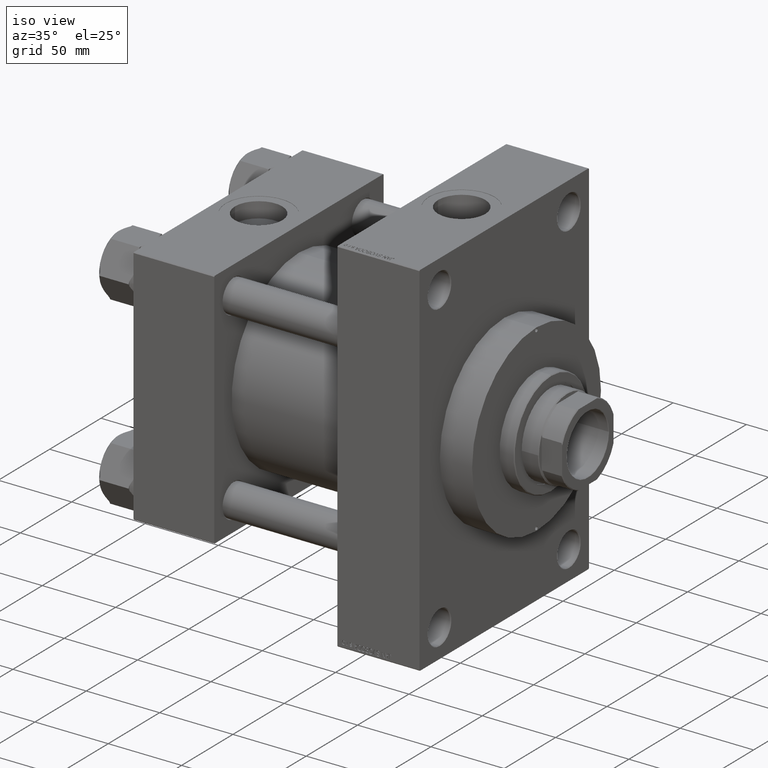
[diagram: clean part render]
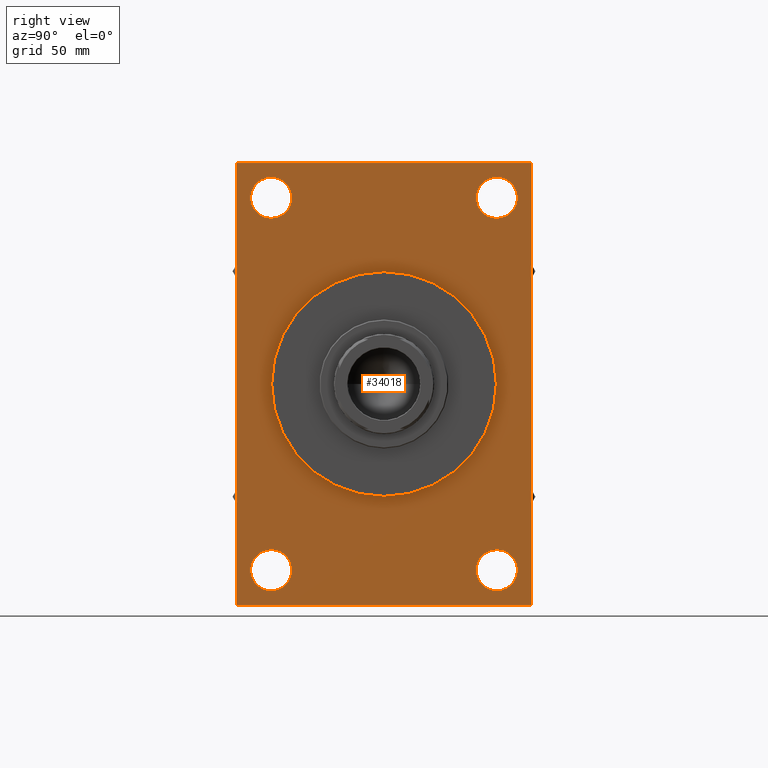
[diagram: tour spotlight — one face highlighted and labeled with its STEP entity id]
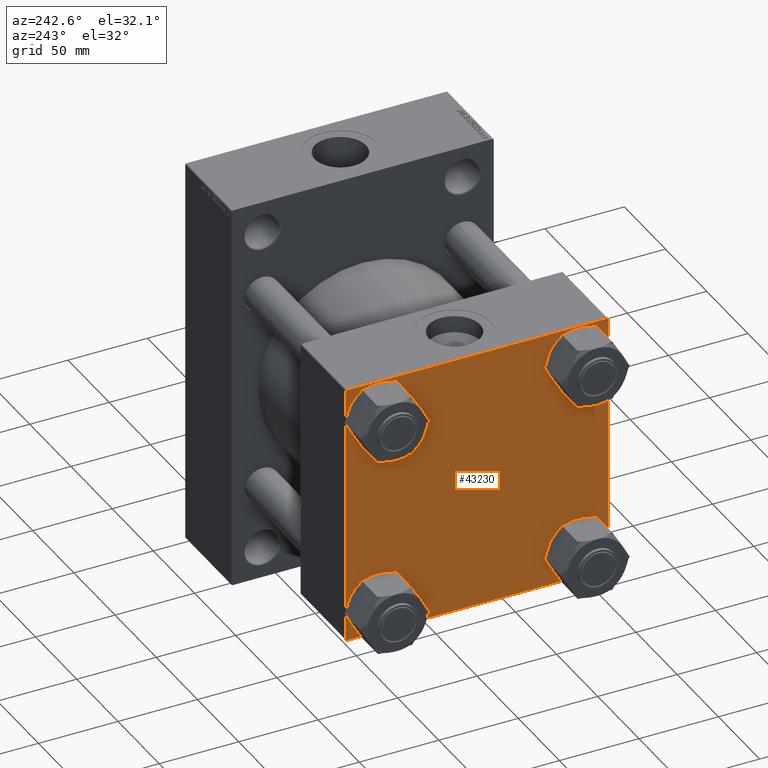
[diagram: tour spotlight — one face highlighted and labeled with its STEP entity id]
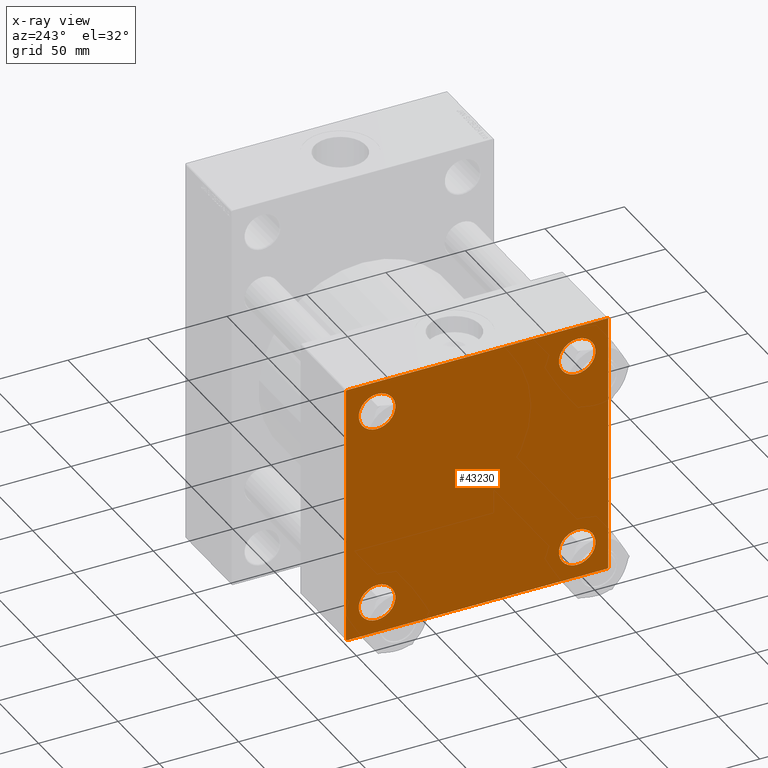
[diagram: x-ray of the same camera — body ghosted, this tour face saturated]
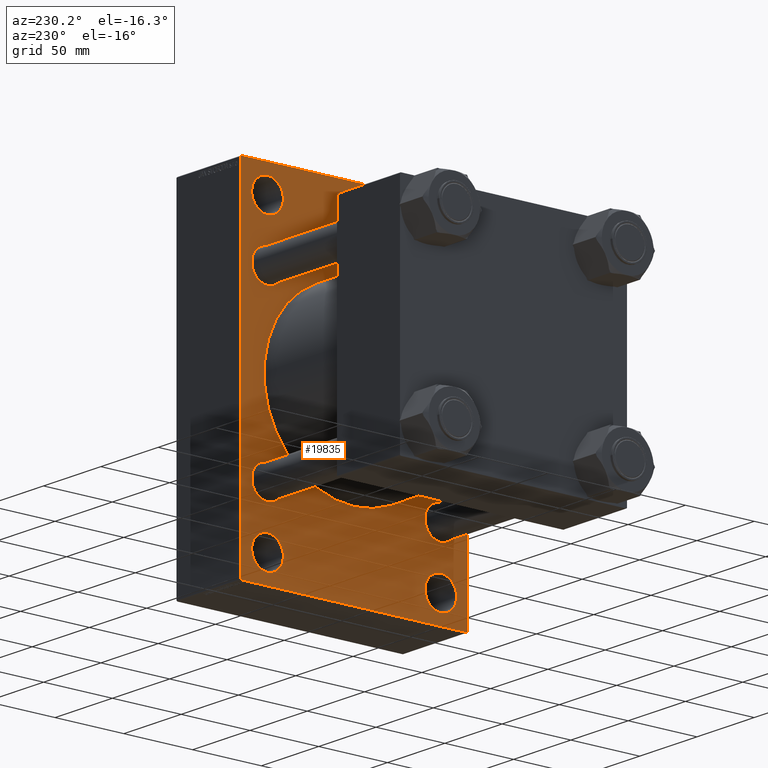
[diagram: tour spotlight — one face highlighted and labeled with its STEP entity id]
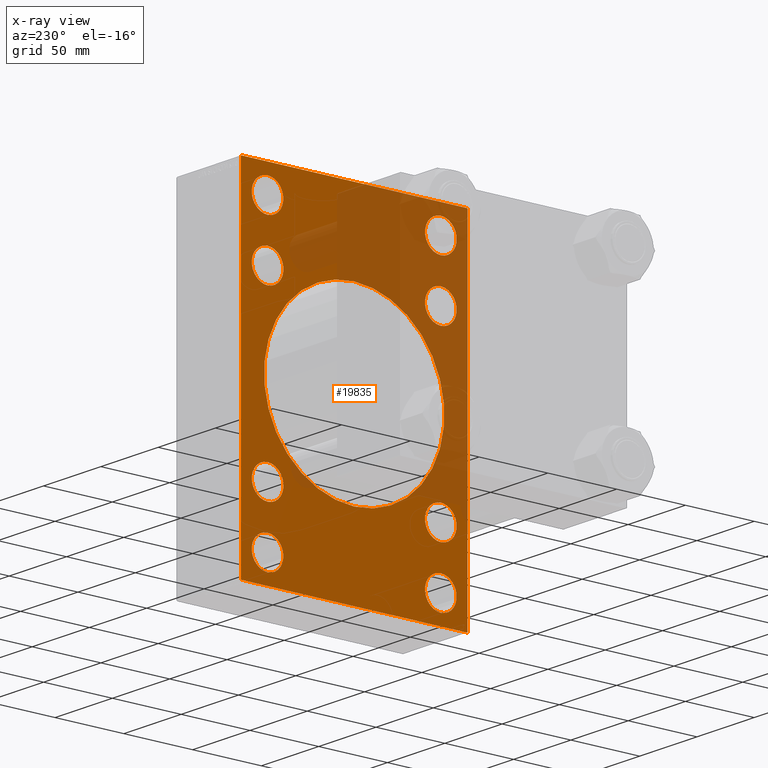
[diagram: x-ray of the same camera — body ghosted, this tour face saturated]
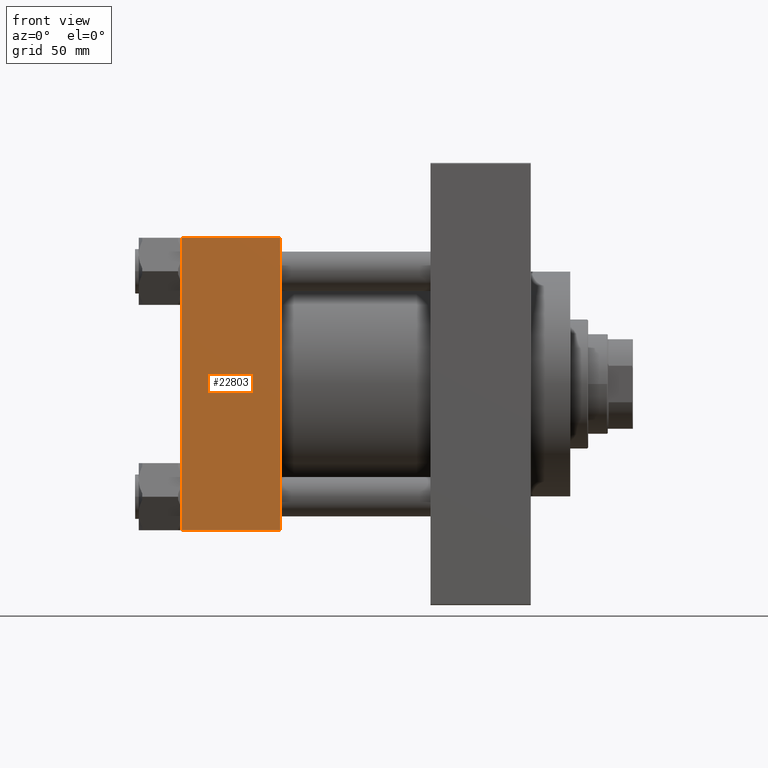
[diagram: tour spotlight — one face highlighted and labeled with its STEP entity id]
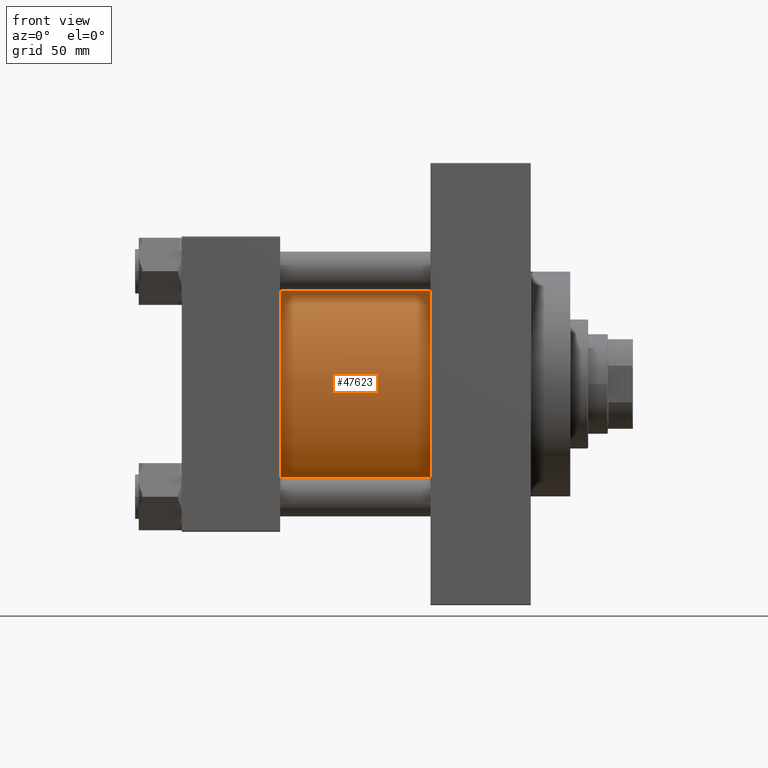
[diagram: tour spotlight — one face highlighted and labeled with its STEP entity id]
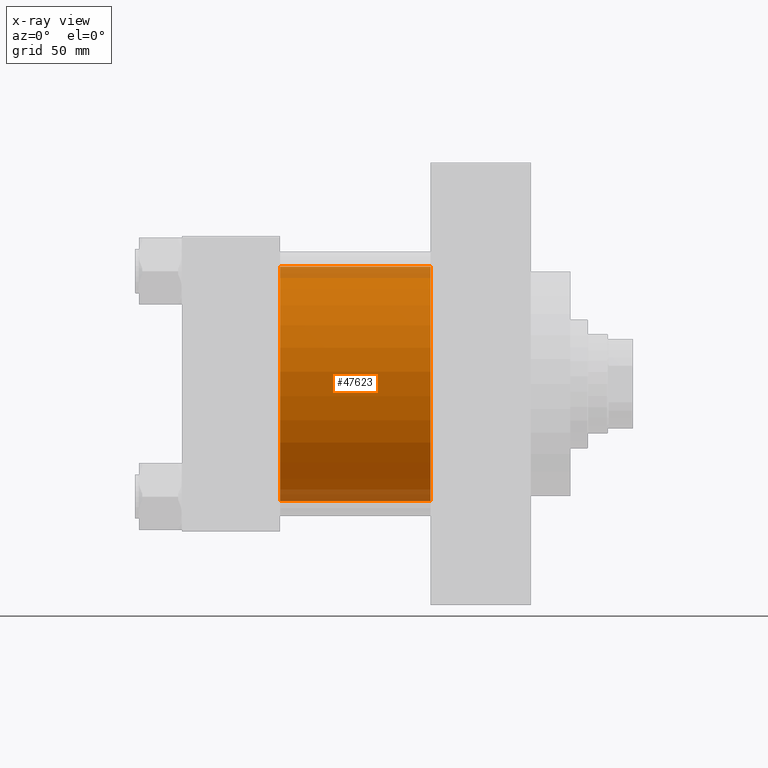
[diagram: x-ray of the same camera — body ghosted, this tour face saturated]
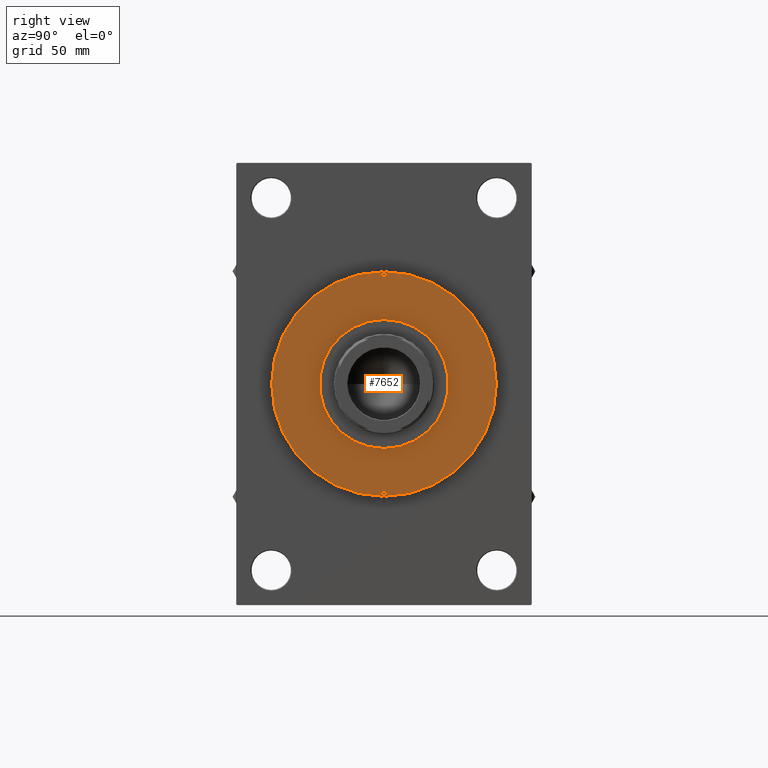
[diagram: tour spotlight — one face highlighted and labeled with its STEP entity id]
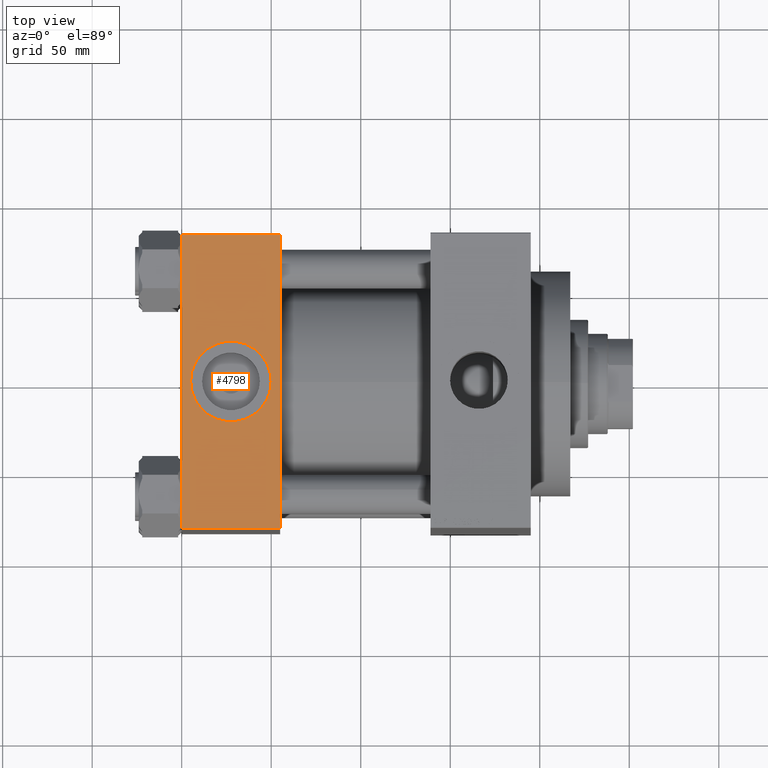
[diagram: tour spotlight — one face highlighted and labeled with its STEP entity id]
A machine part: a face-by-face anatomy tour. The part has 1154 B-rep faces; the first image is the clean iso view, then the 7 largest visible faces are spotlighted one at a time (largest first), each with its STEP entity span.

Face 1 — right view, entity #34018. In plain terms, the highlighted planar face has unit normal (-1, 0, 0).
Definition (entity closure, byte-faithful):
#223 = EDGE_LOOP ( 'NONE', ( #20690, #6409 ) ) ;
#820 = VERTEX_POINT ( 'NONE', #23061 ) ;
#1366 = EDGE_CURVE ( 'NONE', #32984, #35303, #12054, .T. ) ;
#2178 = VERTEX_POINT ( 'NONE', #46836 ) ;
#2706 = DIRECTION ( 'NONE',  ( -0.000000000000000000, -0.7071067811865769936, -0.7071067811865181518 ) ) ;
#3211 = VERTEX_POINT ( 'NONE', #40173 ) ;
#3774 = FACE_BOUND ( 'NONE', #17869, .T. ) ;
#4663 = VECTOR ( 'NONE', #5022, 1000.000000000000000 ) ;
#4694 = DIRECTION ( 'NONE',  ( 0.000000000000000000, 0.000000000000000000, 1.000000000000000000 ) ) ;
#5022 = DIRECTION ( 'NONE',  ( 0.000000000000000000, -0.7071067811865081598, 0.7071067811865868746 ) ) ;
#5428 = DIRECTION ( 'NONE',  ( -0.000000000000000000, 0.7071067811865769936, 0.7071067811865181518 ) ) ;
#5665 = AXIS2_PLACEMENT_3D ( 'NONE', #40023, #36154, #7322 ) ;
#5769 = CARTESIAN_POINT ( 'NONE',  ( 195.0000000000000000, 82.00000000000005684, -123.5000000000000000 ) ) ;
#5809 = CARTESIAN_POINT ( 'NONE',  ( 195.0000000000000000, -82.50000000000002842, 123.0000000000000853 ) ) ;
#5892 = DIRECTION ( 'NONE',  ( 0.000000000000000000, 0.000000000000000000, -1.000000000000000000 ) ) ;
#6292 = EDGE_CURVE ( 'NONE', #3211, #15784, #28823, .T. ) ;
#6328 = CARTESIAN_POINT ( 'NONE',  ( 195.0000000000000000, -82.50000000000002842, 123.0000000000000853 ) ) ;
#6409 = ORIENTED_EDGE ( 'NONE', *, *, #6292, .T. ) ;
#6762 = CIRCLE ( 'NONE', #37694, 11.50000000000006573 ) ;
#7039 = EDGE_LOOP ( 'NONE', ( #27489, #46566 ) ) ;
#7285 = EDGE_CURVE ( 'NONE', #24931, #19778, #31165, .T. ) ;
#7322 = DIRECTION ( 'NONE',  ( 0.000000000000000000, 0.000000000000000000, 1.000000000000000000 ) ) ;
#7387 = FACE_BOUND ( 'NONE', #32376, .T. ) ;
#7614 = ORIENTED_EDGE ( 'NONE', *, *, #41908, .T. ) ;
#7871 = FACE_BOUND ( 'NONE', #223, .T. ) ;
#8001 = CARTESIAN_POINT ( 'NONE',  ( 195.0000000000000000, -82.00000000000009948, 123.4999999999999716 ) ) ;
#8916 = LINE ( 'NONE', #23919, #36175 ) ;
#9595 = AXIS2_PLACEMENT_3D ( 'NONE', #26358, #29278, #15473 ) ;
#9630 = CIRCLE ( 'NONE', #24315, 11.50000000000006573 ) ;
#9961 = DIRECTION ( 'NONE',  ( -1.000000000000000000, 0.000000000000000000, -0.000000000000000000 ) ) ;
#9970 = CARTESIAN_POINT ( 'NONE',  ( 195.0000000000000000, 63.00000000000000000, 92.49999999999992895 ) ) ;
#10361 = VERTEX_POINT ( 'NONE', #5769 ) ;
#10818 = VECTOR ( 'NONE', #33847, 1000.000000000000000 ) ;
#10873 = CARTESIAN_POINT ( 'NONE',  ( 195.0000000000000000, -63.00000000000000000, -92.50000000000011369 ) ) ;
#11324 = VECTOR ( 'NONE', #14364, 1000.000000000000000 ) ;
#11511 = PLANE ( 'NONE',  #28986 ) ;
#12054 = LINE ( 'NONE', #23187, #10818 ) ;
#12140 = CARTESIAN_POINT ( 'NONE',  ( 195.0000000000000000, 63.00000000000000000, 104.0000000000000000 ) ) ;
#12322 = DIRECTION ( 'NONE',  ( 0.000000000000000000, -1.000000000000000000, -8.410780489584517938E-17 ) ) ;
#12443 = ORIENTED_EDGE ( 'NONE', *, *, #30178, .T. ) ;
#12693 = EDGE_CURVE ( 'NONE', #19778, #24931, #27349, .T. ) ;
#12920 = ORIENTED_EDGE ( 'NONE', *, *, #24749, .T. ) ;
#13067 = DIRECTION ( 'NONE',  ( -1.000000000000000000, 0.000000000000000000, -0.000000000000000000 ) ) ;
#13124 = CARTESIAN_POINT ( 'NONE',  ( 195.0000000000000000, -82.50000000000002842, -123.0000000000000284 ) ) ;
#13180 = EDGE_CURVE ( 'NONE', #17160, #23805, #9630, .T. ) ;
#14105 = CARTESIAN_POINT ( 'NONE',  ( 195.0000000000000000, -63.00000000000000000, -104.0000000000000142 ) ) ;
#14337 = CIRCLE ( 'NONE', #42133, 11.49999999999989875 ) ;
#14364 = DIRECTION ( 'NONE',  ( 0.000000000000000000, 0.7071067811865573427, -0.7071067811865378028 ) ) ;
#14645 = ORIENTED_EDGE ( 'NONE', *, *, #7285, .T. ) ;
#15417 = VERTEX_POINT ( 'NONE', #19471 ) ;
#15473 = DIRECTION ( 'NONE',  ( 0.000000000000000000, 0.000000000000000000, 1.000000000000000000 ) ) ;
#15784 = VERTEX_POINT ( 'NONE', #44741 ) ;
#15996 = AXIS2_PLACEMENT_3D ( 'NONE', #35087, #13067, #17176 ) ;
#16103 = CARTESIAN_POINT ( 'NONE',  ( 195.0000000000000000, 82.50000000000000000, -123.0000000000000995 ) ) ;
#16772 = ORIENTED_EDGE ( 'NONE', *, *, #1366, .T. ) ;
#17160 = VERTEX_POINT ( 'NONE', #46491 ) ;
#17176 = DIRECTION ( 'NONE',  ( 0.000000000000000000, 0.000000000000000000, 1.000000000000000000 ) ) ;
#17462 = CARTESIAN_POINT ( 'NONE',  ( 195.0000000000000000, -63.00000000000000000, 115.5000000000000426 ) ) ;
#17525 = CARTESIAN_POINT ( 'NONE',  ( 195.0000000000000000, -82.00000000000002842, -123.5000000000000142 ) ) ;
#17869 = EDGE_LOOP ( 'NONE', ( #22662, #40822 ) ) ;
#18842 = CARTESIAN_POINT ( 'NONE',  ( 195.0000000000000000, 82.00000000000004263, 123.5000000000000142 ) ) ;
#19013 = FACE_BOUND ( 'NONE', #7039, .T. ) ;
#19471 = CARTESIAN_POINT ( 'NONE',  ( 195.0000000000000000, 82.50000000000000000, -123.0000000000000995 ) ) ;
#19778 = VERTEX_POINT ( 'NONE', #35323 ) ;
#19831 = VERTEX_POINT ( 'NONE', #37013 ) ;
#19866 = DIRECTION ( 'NONE',  ( 0.000000000000000000, 0.000000000000000000, 1.000000000000000000 ) ) ;
#20599 = DIRECTION ( 'NONE',  ( -1.000000000000000000, 0.000000000000000000, -0.000000000000000000 ) ) ;
#20673 = LINE ( 'NONE', #17525, #11324 ) ;
#20690 = ORIENTED_EDGE ( 'NONE', *, *, #35397, .T. ) ;
#21640 = LINE ( 'NONE', #25506, #28299 ) ;
#22591 = ORIENTED_EDGE ( 'NONE', *, *, #13180, .T. ) ;
#22625 = EDGE_LOOP ( 'NONE', ( #14645, #39409 ) ) ;
#22662 = ORIENTED_EDGE ( 'NONE', *, *, #44239, .T. ) ;
#23061 = CARTESIAN_POINT ( 'NONE',  ( 195.0000000000000000, 82.49999999999998579, 123.0000000000000142 ) ) ;
#23187 = CARTESIAN_POINT ( 'NONE',  ( 195.0000000000000000, 82.49999999999998579, 123.5000000000000142 ) ) ;
#23267 = DIRECTION ( 'NONE',  ( 0.000000000000000000, 0.000000000000000000, 1.000000000000000000 ) ) ;
#23805 = VERTEX_POINT ( 'NONE', #9970 ) ;
#23919 = CARTESIAN_POINT ( 'NONE',  ( 195.0000000000000000, 82.50000000000000000, -123.5000000000000000 ) ) ;
#24315 = AXIS2_PLACEMENT_3D ( 'NONE', #26950, #33745, #4694 ) ;
#24737 = DIRECTION ( 'NONE',  ( 0.000000000000000000, 0.000000000000000000, 1.000000000000000000 ) ) ;
#24749 = EDGE_CURVE ( 'NONE', #23805, #17160, #29952, .T. ) ;
#24931 = VERTEX_POINT ( 'NONE', #27619 ) ;
#25506 = CARTESIAN_POINT ( 'NONE',  ( 195.0000000000000000, -82.50000000000002842, 123.4999999999999716 ) ) ;
#25539 = VECTOR ( 'NONE', #2706, 1000.000000000000000 ) ;
#26029 = EDGE_CURVE ( 'NONE', #820, #15417, #29845, .T. ) ;
#26221 = DIRECTION ( 'NONE',  ( 0.000000000000000000, 5.618537574013950123E-17, -1.000000000000000000 ) ) ;
#26268 = CARTESIAN_POINT ( 'NONE',  ( 195.0000000000000000, 0.000000000000000000, 0.000000000000000000 ) ) ;
#26358 = CARTESIAN_POINT ( 'NONE',  ( 195.0000000000000000, 0.000000000000000000, 0.000000000000000000 ) ) ;
#26623 = CARTESIAN_POINT ( 'NONE',  ( 195.0000000000000000, 63.00000000000000000, -104.0000000000000142 ) ) ;
#26950 = CARTESIAN_POINT ( 'NONE',  ( 195.0000000000000000, 63.00000000000000000, 104.0000000000000000 ) ) ;
#27349 = CIRCLE ( 'NONE', #9595, 62.75000000000000000 ) ;
#27489 = ORIENTED_EDGE ( 'NONE', *, *, #38642, .T. ) ;
#27619 = CARTESIAN_POINT ( 'NONE',  ( 195.0000000000000000, 0.000000000000000000, -62.75000000000000000 ) ) ;
#27665 = VERTEX_POINT ( 'NONE', #10873 ) ;
#27942 = ORIENTED_EDGE ( 'NONE', *, *, #42076, .T. ) ;
#28299 = VECTOR ( 'NONE', #5892, 1000.000000000000000 ) ;
#28823 = CIRCLE ( 'NONE', #41948, 11.49999999999989875 ) ;
#28930 = VERTEX_POINT ( 'NONE', #17462 ) ;
#28986 = AXIS2_PLACEMENT_3D ( 'NONE', #26268, #30133, #36693 ) ;
#29278 = DIRECTION ( 'NONE',  ( -1.000000000000000000, 0.000000000000000000, -0.000000000000000000 ) ) ;
#29845 = LINE ( 'NONE', #44596, #41598 ) ;
#29952 = CIRCLE ( 'NONE', #30740, 11.50000000000006573 ) ;
#30133 = DIRECTION ( 'NONE',  ( -1.000000000000000000, 0.000000000000000000, -0.000000000000000000 ) ) ;
#30178 = EDGE_CURVE ( 'NONE', #820, #32984, #41815, .T. ) ;
#30485 = DIRECTION ( 'NONE',  ( -1.000000000000000000, 0.000000000000000000, -0.000000000000000000 ) ) ;
#30506 = VERTEX_POINT ( 'NONE', #13124 ) ;
#30643 = EDGE_CURVE ( 'NONE', #35303, #45680, #39502, .T. ) ;
#30740 = AXIS2_PLACEMENT_3D ( 'NONE', #12140, #45029, #23267 ) ;
#31165 = CIRCLE ( 'NONE', #5665, 62.75000000000000000 ) ;
#31185 = ORIENTED_EDGE ( 'NONE', *, *, #45168, .F. ) ;
#31263 = EDGE_CURVE ( 'NONE', #28930, #41187, #43344, .T. ) ;
#31450 = DIRECTION ( 'NONE',  ( -1.000000000000000000, 0.000000000000000000, -0.000000000000000000 ) ) ;
#31773 = DIRECTION ( 'NONE',  ( 0.000000000000000000, 0.000000000000000000, 1.000000000000000000 ) ) ;
#32376 = EDGE_LOOP ( 'NONE', ( #12920, #22591 ) ) ;
#32970 = ORIENTED_EDGE ( 'NONE', *, *, #30643, .T. ) ;
#32984 = VERTEX_POINT ( 'NONE', #41952 ) ;
#33015 = EDGE_CURVE ( 'NONE', #27665, #19831, #47318, .T. ) ;
#33745 = DIRECTION ( 'NONE',  ( -1.000000000000000000, 0.000000000000000000, -0.000000000000000000 ) ) ;
#33847 = DIRECTION ( 'NONE',  ( 0.000000000000000000, -1.000000000000000000, -2.523234146875355505E-16 ) ) ;
#34018 = ADVANCED_FACE ( 'NONE', ( #3774, #19013, #7871, #7387, #40322, #36928 ), #11511, .F. ) ;
#34384 = CARTESIAN_POINT ( 'NONE',  ( 195.0000000000000000, -63.00000000000000000, 103.9999999999999858 ) ) ;
#34413 = VECTOR ( 'NONE', #5428, 1000.000000000000000 ) ;
#34488 = LINE ( 'NONE', #16103, #34413 ) ;
#34862 = EDGE_CURVE ( 'NONE', #10361, #15417, #34488, .T. ) ;
#35087 = CARTESIAN_POINT ( 'NONE',  ( 195.0000000000000000, -63.00000000000000000, -104.0000000000000142 ) ) ;
#35225 = EDGE_LOOP ( 'NONE', ( #27942, #7614, #31185, #40541, #43207, #12443, #16772, #32970 ) ) ;
#35303 = VERTEX_POINT ( 'NONE', #8001 ) ;
#35323 = CARTESIAN_POINT ( 'NONE',  ( 195.0000000000000000, 7.684658664649641591E-15, 62.75000000000000000 ) ) ;
#35397 = EDGE_CURVE ( 'NONE', #15784, #3211, #14337, .T. ) ;
#35403 = DIRECTION ( 'NONE',  ( -1.000000000000000000, 0.000000000000000000, -0.000000000000000000 ) ) ;
#36154 = DIRECTION ( 'NONE',  ( -1.000000000000000000, 0.000000000000000000, -0.000000000000000000 ) ) ;
#36175 = VECTOR ( 'NONE', #12322, 1000.000000000000000 ) ;
#36693 = DIRECTION ( 'NONE',  ( -0.000000000000000000, 0.000000000000000000, 1.000000000000000000 ) ) ;
#36928 = FACE_OUTER_BOUND ( 'NONE', #35225, .T. ) ;
#37013 = CARTESIAN_POINT ( 'NONE',  ( 195.0000000000000000, -63.00000000000000000, -115.4999999999999147 ) ) ;
#37636 = CARTESIAN_POINT ( 'NONE',  ( 195.0000000000000000, -63.00000000000000000, 92.49999999999991473 ) ) ;
#37694 = AXIS2_PLACEMENT_3D ( 'NONE', #34384, #31450, #19866 ) ;
#37764 = DIRECTION ( 'NONE',  ( 0.000000000000000000, 0.000000000000000000, 1.000000000000000000 ) ) ;
#38642 = EDGE_CURVE ( 'NONE', #19831, #27665, #39175, .T. ) ;
#39175 = CIRCLE ( 'NONE', #15996, 11.49999999999989875 ) ;
#39409 = ORIENTED_EDGE ( 'NONE', *, *, #12693, .T. ) ;
#39477 = DIRECTION ( 'NONE',  ( 0.000000000000000000, 0.000000000000000000, 1.000000000000000000 ) ) ;
#39502 = LINE ( 'NONE', #6328, #25539 ) ;
#39959 = CARTESIAN_POINT ( 'NONE',  ( 195.0000000000000000, 63.00000000000000000, -104.0000000000000142 ) ) ;
#40023 = CARTESIAN_POINT ( 'NONE',  ( 195.0000000000000000, 0.000000000000000000, 0.000000000000000000 ) ) ;
#40173 = CARTESIAN_POINT ( 'NONE',  ( 195.0000000000000000, 63.00000000000000000, -92.50000000000011369 ) ) ;
#40322 = FACE_BOUND ( 'NONE', #22625, .T. ) ;
#40541 = ORIENTED_EDGE ( 'NONE', *, *, #34862, .T. ) ;
#40822 = ORIENTED_EDGE ( 'NONE', *, *, #31263, .T. ) ;
#41187 = VERTEX_POINT ( 'NONE', #37636 ) ;
#41598 = VECTOR ( 'NONE', #26221, 1000.000000000000000 ) ;
#41815 = LINE ( 'NONE', #18842, #4663 ) ;
#41908 = EDGE_CURVE ( 'NONE', #30506, #2178, #20673, .T. ) ;
#41948 = AXIS2_PLACEMENT_3D ( 'NONE', #39959, #20599, #39477 ) ;
#41952 = CARTESIAN_POINT ( 'NONE',  ( 195.0000000000000000, 82.00000000000004263, 123.5000000000000142 ) ) ;
#42076 = EDGE_CURVE ( 'NONE', #45680, #30506, #21640, .T. ) ;
#42133 = AXIS2_PLACEMENT_3D ( 'NONE', #26623, #30485, #37764 ) ;
#42553 = AXIS2_PLACEMENT_3D ( 'NONE', #43113, #9961, #24737 ) ;
#43113 = CARTESIAN_POINT ( 'NONE',  ( 195.0000000000000000, -63.00000000000000000, 103.9999999999999858 ) ) ;
#43207 = ORIENTED_EDGE ( 'NONE', *, *, #26029, .F. ) ;
#43344 = CIRCLE ( 'NONE', #42553, 11.50000000000006573 ) ;
#44239 = EDGE_CURVE ( 'NONE', #41187, #28930, #6762, .T. ) ;
#44596 = CARTESIAN_POINT ( 'NONE',  ( 195.0000000000000000, 82.49999999999998579, 123.5000000000000142 ) ) ;
#44741 = CARTESIAN_POINT ( 'NONE',  ( 195.0000000000000000, 63.00000000000000000, -115.4999999999999147 ) ) ;
#45029 = DIRECTION ( 'NONE',  ( -1.000000000000000000, 0.000000000000000000, -0.000000000000000000 ) ) ;
#45168 = EDGE_CURVE ( 'NONE', #10361, #2178, #8916, .T. ) ;
#45680 = VERTEX_POINT ( 'NONE', #5809 ) ;
#45750 = AXIS2_PLACEMENT_3D ( 'NONE', #14105, #35403, #31773 ) ;
#46491 = CARTESIAN_POINT ( 'NONE',  ( 195.0000000000000000, 63.00000000000000000, 115.5000000000000568 ) ) ;
#46566 = ORIENTED_EDGE ( 'NONE', *, *, #33015, .T. ) ;
#46836 = CARTESIAN_POINT ( 'NONE',  ( 195.0000000000000000, -82.00000000000002842, -123.5000000000000142 ) ) ;
#47318 = CIRCLE ( 'NONE', #45750, 11.49999999999989875 ) ;

Face 2 — auxiliary view, entity #43230. An x-ray twin of the same camera follows (body ghosted, this face saturated) — the face is partly hidden behind the body. In plain terms, the highlighted planar face has unit normal (-1, 0, 0).
Definition (entity closure, byte-faithful):
#121 = ORIENTED_EDGE ( 'NONE', *, *, #934, .T. ) ;
#183 = DIRECTION ( 'NONE',  ( 1.000000000000000000, -0.000000000000000000, -0.000000000000000000 ) ) ;
#761 = EDGE_LOOP ( 'NONE', ( #2569, #17724 ) ) ;
#861 = AXIS2_PLACEMENT_3D ( 'NONE', #6598, #21372, #36142 ) ;
#934 = EDGE_CURVE ( 'NONE', #31060, #30465, #23904, .T. ) ;
#2291 = VERTEX_POINT ( 'NONE', #36954 ) ;
#2365 = EDGE_LOOP ( 'NONE', ( #4334, #14044 ) ) ;
#2569 = ORIENTED_EDGE ( 'NONE', *, *, #35581, .T. ) ;
#2874 = VERTEX_POINT ( 'NONE', #43420 ) ;
#2876 = AXIS2_PLACEMENT_3D ( 'NONE', #20571, #2893, #39201 ) ;
#2893 = DIRECTION ( 'NONE',  ( 1.000000000000000000, -0.000000000000000000, -0.000000000000000000 ) ) ;
#3090 = DIRECTION ( 'NONE',  ( 1.000000000000000000, -0.000000000000000000, -0.000000000000000000 ) ) ;
#3462 = CIRCLE ( 'NONE', #18163, 11.50000000000001066 ) ;
#3639 = VECTOR ( 'NONE', #39588, 1000.000000000000114 ) ;
#4334 = ORIENTED_EDGE ( 'NONE', *, *, #19702, .T. ) ;
#4671 = DIRECTION ( 'NONE',  ( 0.000000000000000000, -1.000000000000000000, -8.410780489584519171E-17 ) ) ;
#4958 = DIRECTION ( 'NONE',  ( 0.000000000000000000, -1.682156097916903588E-16, -1.000000000000000000 ) ) ;
#4999 = VERTEX_POINT ( 'NONE', #39768 ) ;
#5001 = EDGE_CURVE ( 'NONE', #23761, #41292, #17887, .T. ) ;
#5418 = CARTESIAN_POINT ( 'NONE',  ( 0.000000000000000000, 62.95000000000000284, -51.44999999999999574 ) ) ;
#6306 = CARTESIAN_POINT ( 'NONE',  ( 0.000000000000000000, -82.50000000000000000, -81.99999999999998579 ) ) ;
#6358 = VERTEX_POINT ( 'NONE', #6306 ) ;
#6531 = CARTESIAN_POINT ( 'NONE',  ( 0.000000000000000000, 62.95000000000000284, 62.95000000000000284 ) ) ;
#6598 = CARTESIAN_POINT ( 'NONE',  ( 0.000000000000000000, 62.95000000000000284, -62.95000000000000284 ) ) ;
#6709 = CARTESIAN_POINT ( 'NONE',  ( 0.000000000000000000, 62.95000000000000284, 62.95000000000000284 ) ) ;
#6756 = LINE ( 'NONE', #17667, #31567 ) ;
#9026 = EDGE_CURVE ( 'NONE', #22963, #29663, #13341, .T. ) ;
#9036 = AXIS2_PLACEMENT_3D ( 'NONE', #28105, #42863, #46957 ) ;
#9493 = CARTESIAN_POINT ( 'NONE',  ( 0.000000000000000000, 62.95000000000000284, -74.45000000000001705 ) ) ;
#9614 = EDGE_LOOP ( 'NONE', ( #11754, #11682 ) ) ;
#10944 = LINE ( 'NONE', #14100, #39776 ) ;
#11682 = ORIENTED_EDGE ( 'NONE', *, *, #13575, .T. ) ;
#11754 = ORIENTED_EDGE ( 'NONE', *, *, #32554, .T. ) ;
#12421 = CARTESIAN_POINT ( 'NONE',  ( 0.000000000000000000, -62.94999999999998153, -51.45000000000000995 ) ) ;
#13264 = EDGE_CURVE ( 'NONE', #22190, #19775, #10944, .T. ) ;
#13341 = CIRCLE ( 'NONE', #16452, 11.50000000000001066 ) ;
#13357 = FACE_BOUND ( 'NONE', #761, .T. ) ;
#13417 = LINE ( 'NONE', #35203, #43900 ) ;
#13575 = EDGE_CURVE ( 'NONE', #2874, #41733, #3462, .T. ) ;
#14044 = ORIENTED_EDGE ( 'NONE', *, *, #9026, .T. ) ;
#14100 = CARTESIAN_POINT ( 'NONE',  ( 0.000000000000000000, 82.50000000000002842, -82.49999999999997158 ) ) ;
#15151 = CARTESIAN_POINT ( 'NONE',  ( 0.000000000000000000, -62.94999999999998153, -74.45000000000003126 ) ) ;
#16242 = VECTOR ( 'NONE', #4958, 1000.000000000000000 ) ;
#16352 = CARTESIAN_POINT ( 'NONE',  ( 0.000000000000000000, -82.25000000000000000, 82.25000000000000000 ) ) ;
#16426 = CIRCLE ( 'NONE', #27227, 11.50000000000001066 ) ;
#16452 = AXIS2_PLACEMENT_3D ( 'NONE', #46041, #20195, #30595 ) ;
#16475 = CARTESIAN_POINT ( 'NONE',  ( 0.000000000000000000, -81.99999999999997158, 82.50000000000001421 ) ) ;
#16642 = CIRCLE ( 'NONE', #40620, 11.50000000000001066 ) ;
#16991 = FACE_BOUND ( 'NONE', #2365, .T. ) ;
#17667 = CARTESIAN_POINT ( 'NONE',  ( 0.000000000000000000, 82.25000000000002842, 82.25000000000002842 ) ) ;
#17724 = ORIENTED_EDGE ( 'NONE', *, *, #5001, .T. ) ;
#17887 = CIRCLE ( 'NONE', #861, 11.50000000000001066 ) ;
#18163 = AXIS2_PLACEMENT_3D ( 'NONE', #6531, #21306, #36072 ) ;
#18490 = CARTESIAN_POINT ( 'NONE',  ( 0.000000000000000000, -62.94999999999998153, 74.45000000000003126 ) ) ;
#19015 = CARTESIAN_POINT ( 'NONE',  ( 0.000000000000000000, 62.95000000000000284, 74.45000000000001705 ) ) ;
#19404 = EDGE_CURVE ( 'NONE', #30465, #31060, #21396, .T. ) ;
#19702 = EDGE_CURVE ( 'NONE', #29663, #22963, #44589, .T. ) ;
#19775 = VERTEX_POINT ( 'NONE', #21051 ) ;
#19932 = LINE ( 'NONE', #42877, #24522 ) ;
#19986 = LINE ( 'NONE', #16352, #38553 ) ;
#20195 = DIRECTION ( 'NONE',  ( 1.000000000000000000, -0.000000000000000000, -0.000000000000000000 ) ) ;
#20477 = VERTEX_POINT ( 'NONE', #24808 ) ;
#20571 = CARTESIAN_POINT ( 'NONE',  ( 0.000000000000000000, -62.94999999999998153, 62.95000000000001705 ) ) ;
#20602 = ORIENTED_EDGE ( 'NONE', *, *, #13264, .T. ) ;
#20703 = CARTESIAN_POINT ( 'NONE',  ( 0.000000000000000000, 82.50000000000002842, 82.00000000000005684 ) ) ;
#21008 = DIRECTION ( 'NONE',  ( 0.000000000000000000, 0.000000000000000000, 1.000000000000000000 ) ) ;
#21051 = CARTESIAN_POINT ( 'NONE',  ( 0.000000000000000000, -82.00000000000000000, -82.50000000000000000 ) ) ;
#21306 = DIRECTION ( 'NONE',  ( 1.000000000000000000, -0.000000000000000000, -0.000000000000000000 ) ) ;
#21372 = DIRECTION ( 'NONE',  ( 1.000000000000000000, -0.000000000000000000, -0.000000000000000000 ) ) ;
#21396 = CIRCLE ( 'NONE', #43032, 11.50000000000001066 ) ;
#21605 = CARTESIAN_POINT ( 'NONE',  ( 0.000000000000000000, -62.94999999999998153, 51.45000000000000995 ) ) ;
#21993 = CARTESIAN_POINT ( 'NONE',  ( 0.000000000000000000, 62.95000000000000284, -62.95000000000000284 ) ) ;
#22125 = EDGE_CURVE ( 'NONE', #20477, #22190, #43205, .T. ) ;
#22190 = VERTEX_POINT ( 'NONE', #36202 ) ;
#22524 = CARTESIAN_POINT ( 'NONE',  ( 0.000000000000000000, -62.94999999999998153, -62.95000000000001705 ) ) ;
#22963 = VERTEX_POINT ( 'NONE', #21605 ) ;
#23640 = EDGE_CURVE ( 'NONE', #19775, #6358, #19932, .T. ) ;
#23761 = VERTEX_POINT ( 'NONE', #9493 ) ;
#23904 = CIRCLE ( 'NONE', #33217, 11.50000000000001066 ) ;
#24386 = ORIENTED_EDGE ( 'NONE', *, *, #23640, .T. ) ;
#24522 = VECTOR ( 'NONE', #42171, 999.9999999999998863 ) ;
#24808 = CARTESIAN_POINT ( 'NONE',  ( 0.000000000000000000, 82.50000000000002842, -82.00000000000000000 ) ) ;
#24828 = CARTESIAN_POINT ( 'NONE',  ( 0.000000000000000000, 82.25000000000001421, -82.25000000000001421 ) ) ;
#25313 = DIRECTION ( 'NONE',  ( 1.000000000000000000, -0.000000000000000000, -0.000000000000000000 ) ) ;
#25756 = EDGE_CURVE ( 'NONE', #28258, #20477, #13417, .T. ) ;
#26263 = ORIENTED_EDGE ( 'NONE', *, *, #27172, .T. ) ;
#26490 = EDGE_CURVE ( 'NONE', #4999, #28258, #6756, .T. ) ;
#26996 = DIRECTION ( 'NONE',  ( -0.000000000000000000, 0.7071067811865474617, 0.7071067811865474617 ) ) ;
#27172 = EDGE_CURVE ( 'NONE', #2291, #44805, #19986, .T. ) ;
#27212 = LINE ( 'NONE', #38119, #16242 ) ;
#27227 = AXIS2_PLACEMENT_3D ( 'NONE', #6709, #3090, #21008 ) ;
#28105 = CARTESIAN_POINT ( 'NONE',  ( 0.000000000000000000, 0.000000000000000000, 0.000000000000000000 ) ) ;
#28258 = VERTEX_POINT ( 'NONE', #20703 ) ;
#28592 = PLANE ( 'NONE',  #9036 ) ;
#29498 = EDGE_CURVE ( 'NONE', #2291, #6358, #27212, .T. ) ;
#29663 = VERTEX_POINT ( 'NONE', #18490 ) ;
#29720 = DIRECTION ( 'NONE',  ( 0.000000000000000000, 0.000000000000000000, 1.000000000000000000 ) ) ;
#30465 = VERTEX_POINT ( 'NONE', #12421 ) ;
#30547 = CARTESIAN_POINT ( 'NONE',  ( 0.000000000000000000, 82.50000000000002842, 82.50000000000002842 ) ) ;
#30595 = DIRECTION ( 'NONE',  ( 0.000000000000000000, 0.000000000000000000, 1.000000000000000000 ) ) ;
#30708 = ORIENTED_EDGE ( 'NONE', *, *, #37507, .F. ) ;
#31060 = VERTEX_POINT ( 'NONE', #15151 ) ;
#31567 = VECTOR ( 'NONE', #42806, 1000.000000000000114 ) ;
#31985 = FACE_OUTER_BOUND ( 'NONE', #35599, .T. ) ;
#32239 = FACE_BOUND ( 'NONE', #9614, .T. ) ;
#32506 = DIRECTION ( 'NONE',  ( 0.000000000000000000, -1.000000000000000000, -1.682156097916903588E-16 ) ) ;
#32554 = EDGE_CURVE ( 'NONE', #41733, #2874, #16426, .T. ) ;
#33217 = AXIS2_PLACEMENT_3D ( 'NONE', #22524, #41153, #33425 ) ;
#33425 = DIRECTION ( 'NONE',  ( 0.000000000000000000, 0.000000000000000000, 1.000000000000000000 ) ) ;
#34496 = DIRECTION ( 'NONE',  ( 0.000000000000000000, 0.000000000000000000, -1.000000000000000000 ) ) ;
#35203 = CARTESIAN_POINT ( 'NONE',  ( 0.000000000000000000, 82.50000000000002842, 82.50000000000002842 ) ) ;
#35487 = CARTESIAN_POINT ( 'NONE',  ( 0.000000000000000000, -62.94999999999998153, -62.95000000000001705 ) ) ;
#35581 = EDGE_CURVE ( 'NONE', #41292, #23761, #16642, .T. ) ;
#35599 = EDGE_LOOP ( 'NONE', ( #37807, #42056, #20602, #24386, #46520, #26263, #30708, #38043 ) ) ;
#36072 = DIRECTION ( 'NONE',  ( 0.000000000000000000, 0.000000000000000000, 1.000000000000000000 ) ) ;
#36142 = DIRECTION ( 'NONE',  ( 0.000000000000000000, 0.000000000000000000, 1.000000000000000000 ) ) ;
#36202 = CARTESIAN_POINT ( 'NONE',  ( 0.000000000000000000, 82.00000000000005684, -82.49999999999997158 ) ) ;
#36448 = DIRECTION ( 'NONE',  ( 0.000000000000000000, 0.000000000000000000, 1.000000000000000000 ) ) ;
#36954 = CARTESIAN_POINT ( 'NONE',  ( 0.000000000000000000, -82.49999999999997158, 82.00000000000001421 ) ) ;
#37507 = EDGE_CURVE ( 'NONE', #4999, #44805, #37827, .T. ) ;
#37807 = ORIENTED_EDGE ( 'NONE', *, *, #25756, .T. ) ;
#37827 = LINE ( 'NONE', #30547, #38344 ) ;
#38043 = ORIENTED_EDGE ( 'NONE', *, *, #26490, .T. ) ;
#38119 = CARTESIAN_POINT ( 'NONE',  ( 0.000000000000000000, -82.49999999999997158, 82.50000000000001421 ) ) ;
#38344 = VECTOR ( 'NONE', #4671, 1000.000000000000000 ) ;
#38553 = VECTOR ( 'NONE', #26996, 1000.000000000000114 ) ;
#39201 = DIRECTION ( 'NONE',  ( 0.000000000000000000, 0.000000000000000000, 1.000000000000000000 ) ) ;
#39588 = DIRECTION ( 'NONE',  ( -0.000000000000000000, -0.7071067811865474617, -0.7071067811865474617 ) ) ;
#39768 = CARTESIAN_POINT ( 'NONE',  ( 0.000000000000000000, 82.00000000000005684, 82.50000000000002842 ) ) ;
#39776 = VECTOR ( 'NONE', #32506, 1000.000000000000000 ) ;
#40620 = AXIS2_PLACEMENT_3D ( 'NONE', #21993, #183, #29720 ) ;
#41153 = DIRECTION ( 'NONE',  ( 1.000000000000000000, -0.000000000000000000, -0.000000000000000000 ) ) ;
#41292 = VERTEX_POINT ( 'NONE', #5418 ) ;
#41652 = ORIENTED_EDGE ( 'NONE', *, *, #19404, .T. ) ;
#41733 = VERTEX_POINT ( 'NONE', #19015 ) ;
#42056 = ORIENTED_EDGE ( 'NONE', *, *, #22125, .T. ) ;
#42171 = DIRECTION ( 'NONE',  ( 0.000000000000000000, -0.7071067811865376918, 0.7071067811865574537 ) ) ;
#42806 = DIRECTION ( 'NONE',  ( 0.000000000000000000, 0.7071067811865474617, -0.7071067811865474617 ) ) ;
#42863 = DIRECTION ( 'NONE',  ( -1.000000000000000000, 0.000000000000000000, 0.000000000000000000 ) ) ;
#42877 = CARTESIAN_POINT ( 'NONE',  ( 0.000000000000000000, -82.25000000000115108, -82.24999999999886313 ) ) ;
#43032 = AXIS2_PLACEMENT_3D ( 'NONE', #35487, #25313, #36448 ) ;
#43205 = LINE ( 'NONE', #24828, #3639 ) ;
#43230 = ADVANCED_FACE ( 'NONE', ( #16991, #47434, #13357, #32239, #31985 ), #28592, .T. ) ;
#43420 = CARTESIAN_POINT ( 'NONE',  ( 0.000000000000000000, 62.95000000000000284, 51.44999999999999574 ) ) ;
#43900 = VECTOR ( 'NONE', #34496, 1000.000000000000000 ) ;
#44589 = CIRCLE ( 'NONE', #2876, 11.50000000000001066 ) ;
#44805 = VERTEX_POINT ( 'NONE', #16475 ) ;
#45103 = EDGE_LOOP ( 'NONE', ( #41652, #121 ) ) ;
#46041 = CARTESIAN_POINT ( 'NONE',  ( 0.000000000000000000, -62.94999999999998153, 62.95000000000001705 ) ) ;
#46520 = ORIENTED_EDGE ( 'NONE', *, *, #29498, .F. ) ;
#46957 = DIRECTION ( 'NONE',  ( 0.000000000000000000, 0.000000000000000000, 1.000000000000000000 ) ) ;
#47434 = FACE_BOUND ( 'NONE', #45103, .T. ) ;

Face 3 — auxiliary view, entity #19835. An x-ray twin of the same camera follows (body ghosted, this face saturated) — the face is partly hidden behind the body. In plain terms, the highlighted planar face has unit normal (-1, 0, 0).
Definition (entity closure, byte-faithful):
#478 = CARTESIAN_POINT ( 'NONE',  ( 139.0000000000000000, -63.00000000000000000, -115.5000000000000142 ) ) ;
#652 = CIRCLE ( 'NONE', #44696, 11.50000000000001066 ) ;
#654 = VERTEX_POINT ( 'NONE', #21880 ) ;
#690 = EDGE_CURVE ( 'NONE', #10820, #38224, #41706, .T. ) ;
#1332 = CIRCLE ( 'NONE', #24515, 11.50000000000001066 ) ;
#1488 = VERTEX_POINT ( 'NONE', #13007 ) ;
#1489 = EDGE_CURVE ( 'NONE', #16639, #15139, #10010, .T. ) ;
#1593 = EDGE_LOOP ( 'NONE', ( #23926, #18168 ) ) ;
#1609 = ORIENTED_EDGE ( 'NONE', *, *, #40111, .T. ) ;
#1684 = CARTESIAN_POINT ( 'NONE',  ( 139.0000000000000000, -63.00000000000000000, 115.4999999999999858 ) ) ;
#1727 = DIRECTION ( 'NONE',  ( 0.000000000000000000, 0.000000000000000000, 1.000000000000000000 ) ) ;
#1868 = CARTESIAN_POINT ( 'NONE',  ( 139.0000000000000000, 63.00000000000000000, 104.0000000000000000 ) ) ;
#2121 = EDGE_LOOP ( 'NONE', ( #1609, #7555 ) ) ;
#2827 = DIRECTION ( 'NONE',  ( 1.000000000000000000, -0.000000000000000000, 0.000000000000000000 ) ) ;
#3083 = VERTEX_POINT ( 'NONE', #15757 ) ;
#3228 = ORIENTED_EDGE ( 'NONE', *, *, #23361, .T. ) ;
#4017 = CARTESIAN_POINT ( 'NONE',  ( 139.0000000000000000, -63.00000000000000000, -104.0000000000000142 ) ) ;
#4433 = AXIS2_PLACEMENT_3D ( 'NONE', #36960, #10337, #29677 ) ;
#4813 = DIRECTION ( 'NONE',  ( 0.000000000000000000, 0.7071067811865081598, -0.7071067811865868746 ) ) ;
#4889 = DIRECTION ( 'NONE',  ( 0.000000000000000000, 0.000000000000000000, 1.000000000000000000 ) ) ;
#5233 = CARTESIAN_POINT ( 'NONE',  ( 139.0000000000000000, -62.94999999999998153, 62.95000000000001705 ) ) ;
#5677 = DIRECTION ( 'NONE',  ( -0.000000000000000000, 0.7071067811865769936, 0.7071067811865181518 ) ) ;
#5714 = EDGE_CURVE ( 'NONE', #32854, #1488, #20074, .T. ) ;
#5758 = DIRECTION ( 'NONE',  ( 0.000000000000000000, 5.618537574013950123E-17, -1.000000000000000000 ) ) ;
#5788 = ORIENTED_EDGE ( 'NONE', *, *, #10817, .T. ) ;
#6207 = AXIS2_PLACEMENT_3D ( 'NONE', #43295, #24422, #35085 ) ;
#6659 = CARTESIAN_POINT ( 'NONE',  ( 139.0000000000000000, 63.00000000000000000, -115.5000000000000142 ) ) ;
#6777 = VERTEX_POINT ( 'NONE', #41559 ) ;
#7346 = CIRCLE ( 'NONE', #32869, 11.50000000000001066 ) ;
#7470 = CARTESIAN_POINT ( 'NONE',  ( 139.0000000000000000, 0.000000000000000000, 0.000000000000000000 ) ) ;
#7555 = ORIENTED_EDGE ( 'NONE', *, *, #26618, .T. ) ;
#7612 = ORIENTED_EDGE ( 'NONE', *, *, #41460, .T. ) ;
#8225 = ORIENTED_EDGE ( 'NONE', *, *, #25701, .T. ) ;
#8409 = CIRCLE ( 'NONE', #18468, 11.50000000000001066 ) ;
#8488 = DIRECTION ( 'NONE',  ( 1.000000000000000000, -0.000000000000000000, 0.000000000000000000 ) ) ;
#8774 = DIRECTION ( 'NONE',  ( 0.000000000000000000, 0.000000000000000000, -1.000000000000000000 ) ) ;
#8863 = VERTEX_POINT ( 'NONE', #35535 ) ;
#9004 = AXIS2_PLACEMENT_3D ( 'NONE', #30976, #8488, #45008 ) ;
#9305 = EDGE_CURVE ( 'NONE', #18282, #20483, #21889, .T. ) ;
#9577 = DIRECTION ( 'NONE',  ( 0.000000000000000000, 0.000000000000000000, 1.000000000000000000 ) ) ;
#9718 = AXIS2_PLACEMENT_3D ( 'NONE', #36518, #32409, #1727 ) ;
#10010 = CIRCLE ( 'NONE', #47091, 11.49999999999999645 ) ;
#10057 = VERTEX_POINT ( 'NONE', #23518 ) ;
#10066 = LINE ( 'NONE', #24841, #29080 ) ;
#10337 = DIRECTION ( 'NONE',  ( 1.000000000000000000, -0.000000000000000000, 0.000000000000000000 ) ) ;
#10384 = DIRECTION ( 'NONE',  ( 0.000000000000000000, -1.000000000000000000, -8.410780489584517938E-17 ) ) ;
#10619 = AXIS2_PLACEMENT_3D ( 'NONE', #31824, #46074, #39329 ) ;
#10730 = DIRECTION ( 'NONE',  ( 0.000000000000000000, 0.000000000000000000, -1.000000000000000000 ) ) ;
#10747 = DIRECTION ( 'NONE',  ( 0.000000000000000000, 0.000000000000000000, 1.000000000000000000 ) ) ;
#10817 = EDGE_CURVE ( 'NONE', #45118, #37274, #12615, .T. ) ;
#10820 = VERTEX_POINT ( 'NONE', #13965 ) ;
#11267 = CARTESIAN_POINT ( 'NONE',  ( 139.0000000000000000, -82.00000000000002842, -123.5000000000000142 ) ) ;
#11346 = FACE_BOUND ( 'NONE', #17385, .T. ) ;
#12170 = CIRCLE ( 'NONE', #10619, 11.49999999999999645 ) ;
#12527 = DIRECTION ( 'NONE',  ( 1.000000000000000000, -0.000000000000000000, 0.000000000000000000 ) ) ;
#12615 = CIRCLE ( 'NONE', #37359, 11.50000000000001066 ) ;
#12871 = AXIS2_PLACEMENT_3D ( 'NONE', #47477, #43874, #10730 ) ;
#12884 = CARTESIAN_POINT ( 'NONE',  ( 139.0000000000000000, -2.602085213965210642E-15, 65.50000000000001421 ) ) ;
#13007 = CARTESIAN_POINT ( 'NONE',  ( 139.0000000000000000, 82.50000000000000000, -123.0000000000000995 ) ) ;
#13965 = CARTESIAN_POINT ( 'NONE',  ( 139.0000000000000000, 5.419351320449953395E-15, -65.50000000000001421 ) ) ;
#14231 = EDGE_CURVE ( 'NONE', #20483, #18282, #41328, .T. ) ;
#14515 = FACE_BOUND ( 'NONE', #19601, .T. ) ;
#14637 = ORIENTED_EDGE ( 'NONE', *, *, #43471, .T. ) ;
#14752 = DIRECTION ( 'NONE',  ( -1.000000000000000000, 0.000000000000000000, -0.000000000000000000 ) ) ;
#14754 = CARTESIAN_POINT ( 'NONE',  ( 139.0000000000000000, -62.94999999999998153, -51.45000000000002416 ) ) ;
#14846 = LINE ( 'NONE', #25504, #41413 ) ;
#15139 = VERTEX_POINT ( 'NONE', #46321 ) ;
#15244 = VECTOR ( 'NONE', #5677, 1000.000000000000000 ) ;
#15316 = CIRCLE ( 'NONE', #46186, 11.49999999999999645 ) ;
#15528 = ORIENTED_EDGE ( 'NONE', *, *, #41114, .F. ) ;
#15757 = CARTESIAN_POINT ( 'NONE',  ( 139.0000000000000000, -82.50000000000002842, -123.0000000000000284 ) ) ;
#15831 = ORIENTED_EDGE ( 'NONE', *, *, #20088, .T. ) ;
#16150 = DIRECTION ( 'NONE',  ( 1.000000000000000000, -0.000000000000000000, 0.000000000000000000 ) ) ;
#16317 = ORIENTED_EDGE ( 'NONE', *, *, #45179, .T. ) ;
#16362 = ORIENTED_EDGE ( 'NONE', *, *, #690, .T. ) ;
#16405 = CARTESIAN_POINT ( 'NONE',  ( 139.0000000000000000, -62.94999999999998153, 62.95000000000001705 ) ) ;
#16420 = EDGE_LOOP ( 'NONE', ( #40534, #8225 ) ) ;
#16496 = DIRECTION ( 'NONE',  ( 1.000000000000000000, -0.000000000000000000, 0.000000000000000000 ) ) ;
#16639 = VERTEX_POINT ( 'NONE', #39696 ) ;
#16671 = CIRCLE ( 'NONE', #9718, 11.49999999999999645 ) ;
#16694 = CARTESIAN_POINT ( 'NONE',  ( 139.0000000000000000, -62.94999999999998153, -74.45000000000001705 ) ) ;
#16875 = DIRECTION ( 'NONE',  ( 1.000000000000000000, -0.000000000000000000, 0.000000000000000000 ) ) ;
#16988 = ORIENTED_EDGE ( 'NONE', *, *, #34782, .T. ) ;
#16998 = CARTESIAN_POINT ( 'NONE',  ( 139.0000000000000000, 63.00000000000000000, -104.0000000000000142 ) ) ;
#17385 = EDGE_LOOP ( 'NONE', ( #7612, #16362 ) ) ;
#17574 = EDGE_CURVE ( 'NONE', #654, #10057, #46920, .T. ) ;
#17907 = CARTESIAN_POINT ( 'NONE',  ( 139.0000000000000000, 82.50000000000000000, -123.5000000000000000 ) ) ;
#18168 = ORIENTED_EDGE ( 'NONE', *, *, #36679, .T. ) ;
#18282 = VERTEX_POINT ( 'NONE', #6659 ) ;
#18336 = EDGE_LOOP ( 'NONE', ( #41037, #15831 ) ) ;
#18468 = AXIS2_PLACEMENT_3D ( 'NONE', #1868, #2827, #39627 ) ;
#18690 = ORIENTED_EDGE ( 'NONE', *, *, #5714, .T. ) ;
#18726 = CARTESIAN_POINT ( 'NONE',  ( 139.0000000000000000, -2.602085213965210642E-15, 0.000000000000000000 ) ) ;
#19356 = CARTESIAN_POINT ( 'NONE',  ( 139.0000000000000000, 102.7500000000046043, 102.7499999999931788 ) ) ;
#19573 = DIRECTION ( 'NONE',  ( 0.000000000000000000, 0.000000000000000000, 1.000000000000000000 ) ) ;
#19601 = EDGE_LOOP ( 'NONE', ( #35891, #25248 ) ) ;
#19835 = ADVANCED_FACE ( 'NONE', ( #43779, #40628, #14515, #40399, #21536, #47863, #29272, #25407, #11346, #36769 ), #40167, .T. ) ;
#19903 = CARTESIAN_POINT ( 'NONE',  ( 139.0000000000000000, -62.94999999999998153, 74.45000000000003126 ) ) ;
#20074 = LINE ( 'NONE', #20784, #45788 ) ;
#20088 = EDGE_CURVE ( 'NONE', #23101, #27648, #22222, .T. ) ;
#20355 = EDGE_CURVE ( 'NONE', #27648, #23101, #12170, .T. ) ;
#20464 = AXIS2_PLACEMENT_3D ( 'NONE', #16998, #31758, #24248 ) ;
#20483 = VERTEX_POINT ( 'NONE', #43905 ) ;
#20726 = VECTOR ( 'NONE', #4813, 1000.000000000000000 ) ;
#20784 = CARTESIAN_POINT ( 'NONE',  ( 139.0000000000000000, 82.49999999999998579, 123.5000000000000142 ) ) ;
#20836 = AXIS2_PLACEMENT_3D ( 'NONE', #18726, #33485, #8774 ) ;
#21254 = VERTEX_POINT ( 'NONE', #34989 ) ;
#21536 = FACE_BOUND ( 'NONE', #2121, .T. ) ;
#21710 = CARTESIAN_POINT ( 'NONE',  ( 139.0000000000000000, 63.00000000000000000, 104.0000000000000000 ) ) ;
#21880 = CARTESIAN_POINT ( 'NONE',  ( 139.0000000000000000, 82.00000000000004263, 123.5000000000000142 ) ) ;
#21889 = CIRCLE ( 'NONE', #28819, 11.50000000000001066 ) ;
#22222 = CIRCLE ( 'NONE', #4433, 11.49999999999999645 ) ;
#22884 = DIRECTION ( 'NONE',  ( 1.000000000000000000, -0.000000000000000000, 0.000000000000000000 ) ) ;
#23101 = VERTEX_POINT ( 'NONE', #16694 ) ;
#23123 = CARTESIAN_POINT ( 'NONE',  ( 139.0000000000000000, 63.00000000000000000, 92.49999999999998579 ) ) ;
#23196 = ORIENTED_EDGE ( 'NONE', *, *, #47874, .T. ) ;
#23361 = EDGE_CURVE ( 'NONE', #43248, #10057, #46779, .T. ) ;
#23518 = CARTESIAN_POINT ( 'NONE',  ( 139.0000000000000000, -82.00000000000009948, 123.4999999999999716 ) ) ;
#23628 = VECTOR ( 'NONE', #25424, 1000.000000000000000 ) ;
#23926 = ORIENTED_EDGE ( 'NONE', *, *, #30985, .T. ) ;
#24248 = DIRECTION ( 'NONE',  ( 0.000000000000000000, 0.000000000000000000, 1.000000000000000000 ) ) ;
#24329 = CARTESIAN_POINT ( 'NONE',  ( 139.0000000000000000, 102.7499999999966320, -102.7500000000051870 ) ) ;
#24422 = DIRECTION ( 'NONE',  ( 1.000000000000000000, -0.000000000000000000, 0.000000000000000000 ) ) ;
#24515 = AXIS2_PLACEMENT_3D ( 'NONE', #5233, #16150, #9577 ) ;
#24841 = CARTESIAN_POINT ( 'NONE',  ( 139.0000000000000000, -82.50000000000002842, 123.4999999999999716 ) ) ;
#24860 = DIRECTION ( 'NONE',  ( 0.000000000000000000, 0.000000000000000000, 1.000000000000000000 ) ) ;
#25248 = ORIENTED_EDGE ( 'NONE', *, *, #9305, .T. ) ;
#25349 = VERTEX_POINT ( 'NONE', #478 ) ;
#25373 = CIRCLE ( 'NONE', #37732, 11.50000000000001066 ) ;
#25407 = FACE_BOUND ( 'NONE', #18336, .T. ) ;
#25424 = DIRECTION ( 'NONE',  ( 0.000000000000000000, -1.000000000000000000, -2.523234146875355505E-16 ) ) ;
#25504 = CARTESIAN_POINT ( 'NONE',  ( 139.0000000000000000, -102.7499999999988916, -102.7500000000017479 ) ) ;
#25701 = EDGE_CURVE ( 'NONE', #15139, #16639, #15316, .T. ) ;
#25897 = EDGE_CURVE ( 'NONE', #45158, #25349, #25373, .T. ) ;
#26618 = EDGE_CURVE ( 'NONE', #37785, #28918, #652, .T. ) ;
#26831 = EDGE_CURVE ( 'NONE', #37274, #45118, #8409, .T. ) ;
#26834 = CARTESIAN_POINT ( 'NONE',  ( 139.0000000000000000, 63.00000000000000000, 115.5000000000000000 ) ) ;
#27079 = CIRCLE ( 'NONE', #6207, 11.49999999999999645 ) ;
#27648 = VERTEX_POINT ( 'NONE', #14754 ) ;
#28527 = CARTESIAN_POINT ( 'NONE',  ( 139.0000000000000000, -62.94999999999998153, 51.45000000000000995 ) ) ;
#28780 = DIRECTION ( 'NONE',  ( -0.000000000000000000, 0.000000000000000000, 1.000000000000000000 ) ) ;
#28819 = AXIS2_PLACEMENT_3D ( 'NONE', #34179, #16496, #4889 ) ;
#28918 = VERTEX_POINT ( 'NONE', #19903 ) ;
#29080 = VECTOR ( 'NONE', #39602, 1000.000000000000000 ) ;
#29272 = FACE_BOUND ( 'NONE', #16420, .T. ) ;
#29426 = DIRECTION ( 'NONE',  ( 1.000000000000000000, -0.000000000000000000, 0.000000000000000000 ) ) ;
#29660 = DIRECTION ( 'NONE',  ( 0.000000000000000000, 0.000000000000000000, 1.000000000000000000 ) ) ;
#29677 = DIRECTION ( 'NONE',  ( 0.000000000000000000, 0.000000000000000000, 1.000000000000000000 ) ) ;
#30868 = CIRCLE ( 'NONE', #35503, 11.50000000000001066 ) ;
#30976 = CARTESIAN_POINT ( 'NONE',  ( 139.0000000000000000, -63.00000000000000000, 103.9999999999999858 ) ) ;
#30985 = EDGE_CURVE ( 'NONE', #47672, #21254, #27079, .T. ) ;
#31540 = ORIENTED_EDGE ( 'NONE', *, *, #17574, .F. ) ;
#31688 = LINE ( 'NONE', #17907, #33829 ) ;
#31758 = DIRECTION ( 'NONE',  ( 1.000000000000000000, -0.000000000000000000, 0.000000000000000000 ) ) ;
#31776 = ORIENTED_EDGE ( 'NONE', *, *, #36476, .T. ) ;
#31824 = CARTESIAN_POINT ( 'NONE',  ( 139.0000000000000000, -62.94999999999998153, -62.95000000000001705 ) ) ;
#32409 = DIRECTION ( 'NONE',  ( 1.000000000000000000, -0.000000000000000000, 0.000000000000000000 ) ) ;
#32854 = VERTEX_POINT ( 'NONE', #40301 ) ;
#32869 = AXIS2_PLACEMENT_3D ( 'NONE', #4017, #29426, #29660 ) ;
#33485 = DIRECTION ( 'NONE',  ( 1.000000000000000000, 0.000000000000000000, 0.000000000000000000 ) ) ;
#33693 = ORIENTED_EDGE ( 'NONE', *, *, #25897, .T. ) ;
#33829 = VECTOR ( 'NONE', #10384, 1000.000000000000000 ) ;
#34030 = DIRECTION ( 'NONE',  ( 0.000000000000000000, 0.000000000000000000, 1.000000000000000000 ) ) ;
#34179 = CARTESIAN_POINT ( 'NONE',  ( 139.0000000000000000, 63.00000000000000000, -104.0000000000000142 ) ) ;
#34586 = CARTESIAN_POINT ( 'NONE',  ( 139.0000000000000000, -63.00000000000000000, -92.50000000000000000 ) ) ;
#34778 = VERTEX_POINT ( 'NONE', #11267 ) ;
#34782 = EDGE_CURVE ( 'NONE', #25349, #45158, #7346, .T. ) ;
#34989 = CARTESIAN_POINT ( 'NONE',  ( 139.0000000000000000, 62.95000000000000284, 51.45000000000000995 ) ) ;
#35085 = DIRECTION ( 'NONE',  ( 0.000000000000000000, 0.000000000000000000, 1.000000000000000000 ) ) ;
#35503 = AXIS2_PLACEMENT_3D ( 'NONE', #45415, #12527, #41573 ) ;
#35505 = CARTESIAN_POINT ( 'NONE',  ( 139.0000000000000000, 62.95000000000000284, -62.95000000000000284 ) ) ;
#35535 = CARTESIAN_POINT ( 'NONE',  ( 139.0000000000000000, -63.00000000000000000, 92.49999999999997158 ) ) ;
#35600 = EDGE_LOOP ( 'NONE', ( #33693, #16988 ) ) ;
#35704 = LINE ( 'NONE', #24329, #36973 ) ;
#35891 = ORIENTED_EDGE ( 'NONE', *, *, #14231, .T. ) ;
#36469 = DIRECTION ( 'NONE',  ( 0.000000000000000000, 0.000000000000000000, 1.000000000000000000 ) ) ;
#36476 = EDGE_CURVE ( 'NONE', #34778, #3083, #14846, .T. ) ;
#36518 = CARTESIAN_POINT ( 'NONE',  ( 139.0000000000000000, 62.95000000000000284, 62.95000000000000284 ) ) ;
#36679 = EDGE_CURVE ( 'NONE', #21254, #47672, #16671, .T. ) ;
#36769 = FACE_OUTER_BOUND ( 'NONE', #41431, .T. ) ;
#36960 = CARTESIAN_POINT ( 'NONE',  ( 139.0000000000000000, -62.94999999999998153, -62.95000000000001705 ) ) ;
#36973 = VECTOR ( 'NONE', #39101, 1000.000000000000000 ) ;
#37274 = VERTEX_POINT ( 'NONE', #23123 ) ;
#37359 = AXIS2_PLACEMENT_3D ( 'NONE', #21710, #43952, #36469 ) ;
#37732 = AXIS2_PLACEMENT_3D ( 'NONE', #46767, #47259, #10747 ) ;
#37785 = VERTEX_POINT ( 'NONE', #28527 ) ;
#38201 = CARTESIAN_POINT ( 'NONE',  ( 139.0000000000000000, -102.7499999999966036, 102.7500000000051728 ) ) ;
#38224 = VERTEX_POINT ( 'NONE', #12884 ) ;
#38444 = EDGE_CURVE ( 'NONE', #44208, #8863, #41489, .T. ) ;
#39101 = DIRECTION ( 'NONE',  ( -0.000000000000000000, -0.7071067811865769936, -0.7071067811865181518 ) ) ;
#39254 = CARTESIAN_POINT ( 'NONE',  ( 139.0000000000000000, -82.50000000000002842, 123.0000000000000853 ) ) ;
#39329 = DIRECTION ( 'NONE',  ( 0.000000000000000000, 0.000000000000000000, 1.000000000000000000 ) ) ;
#39602 = DIRECTION ( 'NONE',  ( 0.000000000000000000, 0.000000000000000000, -1.000000000000000000 ) ) ;
#39627 = DIRECTION ( 'NONE',  ( 0.000000000000000000, 0.000000000000000000, 1.000000000000000000 ) ) ;
#39696 = CARTESIAN_POINT ( 'NONE',  ( 139.0000000000000000, 62.95000000000000284, -51.45000000000000995 ) ) ;
#39989 = AXIS2_PLACEMENT_3D ( 'NONE', #7470, #14752, #28780 ) ;
#40111 = EDGE_CURVE ( 'NONE', #28918, #37785, #1332, .T. ) ;
#40167 = PLANE ( 'NONE',  #39989 ) ;
#40186 = CARTESIAN_POINT ( 'NONE',  ( 139.0000000000000000, 82.49999999999998579, 123.5000000000000142 ) ) ;
#40301 = CARTESIAN_POINT ( 'NONE',  ( 139.0000000000000000, 82.49999999999998579, 123.0000000000000142 ) ) ;
#40399 = FACE_BOUND ( 'NONE', #47829, .T. ) ;
#40467 = ORIENTED_EDGE ( 'NONE', *, *, #26831, .T. ) ;
#40534 = ORIENTED_EDGE ( 'NONE', *, *, #1489, .T. ) ;
#40628 = FACE_BOUND ( 'NONE', #35600, .T. ) ;
#41037 = ORIENTED_EDGE ( 'NONE', *, *, #20355, .T. ) ;
#41040 = CARTESIAN_POINT ( 'NONE',  ( 139.0000000000000000, 62.95000000000000284, -62.95000000000000284 ) ) ;
#41114 = EDGE_CURVE ( 'NONE', #43248, #3083, #10066, .T. ) ;
#41328 = CIRCLE ( 'NONE', #20464, 11.50000000000001066 ) ;
#41413 = VECTOR ( 'NONE', #47725, 1000.000000000000000 ) ;
#41431 = EDGE_LOOP ( 'NONE', ( #14637, #31776, #15528, #3228, #31540, #16317, #18690, #44628 ) ) ;
#41460 = EDGE_CURVE ( 'NONE', #38224, #10820, #41483, .T. ) ;
#41483 = CIRCLE ( 'NONE', #12871, 65.50000000000001421 ) ;
#41489 = CIRCLE ( 'NONE', #9004, 11.50000000000001066 ) ;
#41559 = CARTESIAN_POINT ( 'NONE',  ( 139.0000000000000000, 82.00000000000005684, -123.5000000000000000 ) ) ;
#41573 = DIRECTION ( 'NONE',  ( 0.000000000000000000, 0.000000000000000000, 1.000000000000000000 ) ) ;
#41706 = CIRCLE ( 'NONE', #20836, 65.50000000000001421 ) ;
#41821 = DIRECTION ( 'NONE',  ( 1.000000000000000000, -0.000000000000000000, 0.000000000000000000 ) ) ;
#42413 = ORIENTED_EDGE ( 'NONE', *, *, #38444, .T. ) ;
#43248 = VERTEX_POINT ( 'NONE', #39254 ) ;
#43295 = CARTESIAN_POINT ( 'NONE',  ( 139.0000000000000000, 62.95000000000000284, 62.95000000000000284 ) ) ;
#43471 = EDGE_CURVE ( 'NONE', #6777, #34778, #31688, .T. ) ;
#43521 = CARTESIAN_POINT ( 'NONE',  ( 139.0000000000000000, 62.95000000000000284, 74.45000000000000284 ) ) ;
#43779 = FACE_BOUND ( 'NONE', #44672, .T. ) ;
#43874 = DIRECTION ( 'NONE',  ( 1.000000000000000000, 0.000000000000000000, 0.000000000000000000 ) ) ;
#43905 = CARTESIAN_POINT ( 'NONE',  ( 139.0000000000000000, 63.00000000000000000, -92.50000000000000000 ) ) ;
#43952 = DIRECTION ( 'NONE',  ( 1.000000000000000000, -0.000000000000000000, 0.000000000000000000 ) ) ;
#44208 = VERTEX_POINT ( 'NONE', #1684 ) ;
#44628 = ORIENTED_EDGE ( 'NONE', *, *, #45552, .T. ) ;
#44672 = EDGE_LOOP ( 'NONE', ( #42413, #23196 ) ) ;
#44696 = AXIS2_PLACEMENT_3D ( 'NONE', #16405, #41821, #19573 ) ;
#44971 = LINE ( 'NONE', #19356, #20726 ) ;
#45008 = DIRECTION ( 'NONE',  ( 0.000000000000000000, 0.000000000000000000, 1.000000000000000000 ) ) ;
#45118 = VERTEX_POINT ( 'NONE', #26834 ) ;
#45158 = VERTEX_POINT ( 'NONE', #34586 ) ;
#45179 = EDGE_CURVE ( 'NONE', #654, #32854, #44971, .T. ) ;
#45415 = CARTESIAN_POINT ( 'NONE',  ( 139.0000000000000000, -63.00000000000000000, 103.9999999999999858 ) ) ;
#45552 = EDGE_CURVE ( 'NONE', #1488, #6777, #35704, .T. ) ;
#45788 = VECTOR ( 'NONE', #5758, 1000.000000000000000 ) ;
#46074 = DIRECTION ( 'NONE',  ( 1.000000000000000000, -0.000000000000000000, 0.000000000000000000 ) ) ;
#46186 = AXIS2_PLACEMENT_3D ( 'NONE', #41040, #22884, #34030 ) ;
#46321 = CARTESIAN_POINT ( 'NONE',  ( 139.0000000000000000, 62.95000000000000284, -74.45000000000000284 ) ) ;
#46767 = CARTESIAN_POINT ( 'NONE',  ( 139.0000000000000000, -63.00000000000000000, -104.0000000000000142 ) ) ;
#46779 = LINE ( 'NONE', #38201, #15244 ) ;
#46920 = LINE ( 'NONE', #40186, #23628 ) ;
#47091 = AXIS2_PLACEMENT_3D ( 'NONE', #35505, #16875, #24860 ) ;
#47259 = DIRECTION ( 'NONE',  ( 1.000000000000000000, -0.000000000000000000, 0.000000000000000000 ) ) ;
#47477 = CARTESIAN_POINT ( 'NONE',  ( 139.0000000000000000, -2.602085213965210642E-15, 0.000000000000000000 ) ) ;
#47672 = VERTEX_POINT ( 'NONE', #43521 ) ;
#47725 = DIRECTION ( 'NONE',  ( 0.000000000000000000, -0.7071067811865573427, 0.7071067811865378028 ) ) ;
#47829 = EDGE_LOOP ( 'NONE', ( #5788, #40467 ) ) ;
#47863 = FACE_BOUND ( 'NONE', #1593, .T. ) ;
#47874 = EDGE_CURVE ( 'NONE', #8863, #44208, #30868, .T. ) ;

Face 4 — front view, entity #22803. In plain terms, the highlighted planar face has unit normal (0, 1, -0).
Definition (entity closure, byte-faithful):
#1517 = DIRECTION ( 'NONE',  ( 0.000000000000000000, 1.000000000000000000, -1.682156097916903588E-16 ) ) ;
#1826 = LINE ( 'NONE', #42945, #28786 ) ;
#2291 = VERTEX_POINT ( 'NONE', #36954 ) ;
#4958 = DIRECTION ( 'NONE',  ( 0.000000000000000000, -1.682156097916903588E-16, -1.000000000000000000 ) ) ;
#6306 = CARTESIAN_POINT ( 'NONE',  ( 0.000000000000000000, -82.50000000000000000, -81.99999999999998579 ) ) ;
#6358 = VERTEX_POINT ( 'NONE', #6306 ) ;
#8971 = CARTESIAN_POINT ( 'NONE',  ( 55.00000000000000000, -82.49999999999997158, 82.50000000000001421 ) ) ;
#11657 = VERTEX_POINT ( 'NONE', #34802 ) ;
#14101 = CARTESIAN_POINT ( 'NONE',  ( 55.00000000000000000, -82.50000000000000000, -81.99999999999998579 ) ) ;
#15667 = EDGE_LOOP ( 'NONE', ( #42087, #46165, #45593, #45852 ) ) ;
#16242 = VECTOR ( 'NONE', #4958, 1000.000000000000000 ) ;
#17261 = VERTEX_POINT ( 'NONE', #14101 ) ;
#17509 = EDGE_CURVE ( 'NONE', #11657, #17261, #27352, .T. ) ;
#18277 = DIRECTION ( 'NONE',  ( 1.000000000000000000, 0.000000000000000000, 0.000000000000000000 ) ) ;
#19883 = DIRECTION ( 'NONE',  ( 0.000000000000000000, -1.682156097916903588E-16, -1.000000000000000000 ) ) ;
#20871 = FACE_OUTER_BOUND ( 'NONE', #15667, .T. ) ;
#22803 = ADVANCED_FACE ( 'NONE', ( #20871 ), #24489, .F. ) ;
#24489 = PLANE ( 'NONE',  #26808 ) ;
#25734 = LINE ( 'NONE', #40492, #38374 ) ;
#26808 = AXIS2_PLACEMENT_3D ( 'NONE', #28116, #1517, #38788 ) ;
#27212 = LINE ( 'NONE', #38119, #16242 ) ;
#27352 = LINE ( 'NONE', #8971, #42964 ) ;
#28116 = CARTESIAN_POINT ( 'NONE',  ( 55.00000000000000000, -82.49999999999997158, 82.50000000000001421 ) ) ;
#28786 = VECTOR ( 'NONE', #18277, 1000.000000000000000 ) ;
#29498 = EDGE_CURVE ( 'NONE', #2291, #6358, #27212, .T. ) ;
#32759 = EDGE_CURVE ( 'NONE', #6358, #17261, #1826, .T. ) ;
#34802 = CARTESIAN_POINT ( 'NONE',  ( 55.00000000000000000, -82.49999999999997158, 82.00000000000001421 ) ) ;
#36866 = DIRECTION ( 'NONE',  ( -1.000000000000000000, 0.000000000000000000, 0.000000000000000000 ) ) ;
#36954 = CARTESIAN_POINT ( 'NONE',  ( 0.000000000000000000, -82.49999999999997158, 82.00000000000001421 ) ) ;
#38119 = CARTESIAN_POINT ( 'NONE',  ( 0.000000000000000000, -82.49999999999997158, 82.50000000000001421 ) ) ;
#38374 = VECTOR ( 'NONE', #36866, 1000.000000000000000 ) ;
#38788 = DIRECTION ( 'NONE',  ( 0.000000000000000000, 1.682156097916903588E-16, 1.000000000000000000 ) ) ;
#40492 = CARTESIAN_POINT ( 'NONE',  ( 55.00000000000000000, -82.49999999999997158, 82.00000000000001421 ) ) ;
#41579 = EDGE_CURVE ( 'NONE', #11657, #2291, #25734, .T. ) ;
#42087 = ORIENTED_EDGE ( 'NONE', *, *, #29498, .T. ) ;
#42945 = CARTESIAN_POINT ( 'NONE',  ( 55.00000000000000000, -82.50000000000000000, -81.99999999999998579 ) ) ;
#42964 = VECTOR ( 'NONE', #19883, 1000.000000000000000 ) ;
#45593 = ORIENTED_EDGE ( 'NONE', *, *, #17509, .F. ) ;
#45852 = ORIENTED_EDGE ( 'NONE', *, *, #41579, .T. ) ;
#46165 = ORIENTED_EDGE ( 'NONE', *, *, #32759, .T. ) ;

Face 5 — front view, entity #47623. An x-ray twin of the same camera follows (body ghosted, this face saturated) — the face is partly hidden behind the body. In plain terms, the highlighted cylindrical surface (partial cylindrical patch) has radius 65.5 mm, axis along (-1, -0, -0).
Definition (entity closure, byte-faithful):
#6259 = DIRECTION ( 'NONE',  ( -1.000000000000000000, -0.000000000000000000, -0.000000000000000000 ) ) ;
#6980 = VECTOR ( 'NONE', #16400, 1000.000000000000000 ) ;
#10730 = DIRECTION ( 'NONE',  ( 0.000000000000000000, 0.000000000000000000, -1.000000000000000000 ) ) ;
#10820 = VERTEX_POINT ( 'NONE', #13965 ) ;
#12871 = AXIS2_PLACEMENT_3D ( 'NONE', #47477, #43874, #10730 ) ;
#12884 = CARTESIAN_POINT ( 'NONE',  ( 139.0000000000000000, -2.602085213965210642E-15, 65.50000000000001421 ) ) ;
#13242 = CARTESIAN_POINT ( 'NONE',  ( 139.0000000000000000, -2.602085213965210642E-15, 65.50000000000001421 ) ) ;
#13523 = CYLINDRICAL_SURFACE ( 'NONE', #21600, 65.50000000000001421 ) ;
#13722 = CIRCLE ( 'NONE', #19912, 65.50000000000001421 ) ;
#13965 = CARTESIAN_POINT ( 'NONE',  ( 139.0000000000000000, 5.419351320449953395E-15, -65.50000000000001421 ) ) ;
#16400 = DIRECTION ( 'NONE',  ( -1.000000000000000000, -0.000000000000000000, -0.000000000000000000 ) ) ;
#16606 = VERTEX_POINT ( 'NONE', #47156 ) ;
#18283 = VECTOR ( 'NONE', #22689, 1000.000000000000000 ) ;
#19913 = EDGE_CURVE ( 'NONE', #16606, #32013, #13722, .T. ) ;
#19912 = AXIS2_PLACEMENT_3D ( 'NONE', #33608, #26582, #27056 ) ;
#21035 = CARTESIAN_POINT ( 'NONE',  ( 139.0000000000000000, -2.602085213965210642E-15, 0.000000000000000000 ) ) ;
#21600 = AXIS2_PLACEMENT_3D ( 'NONE', #21035, #6259, #35790 ) ;
#22689 = DIRECTION ( 'NONE',  ( -1.000000000000000000, -0.000000000000000000, -0.000000000000000000 ) ) ;
#22830 = ORIENTED_EDGE ( 'NONE', *, *, #19913, .T. ) ;
#23213 = ORIENTED_EDGE ( 'NONE', *, *, #41460, .F. ) ;
#26014 = ORIENTED_EDGE ( 'NONE', *, *, #30315, .T. ) ;
#26582 = DIRECTION ( 'NONE',  ( 1.000000000000000000, -0.000000000000000000, -0.000000000000000000 ) ) ;
#27056 = DIRECTION ( 'NONE',  ( 0.000000000000000000, 0.000000000000000000, 1.000000000000000000 ) ) ;
#28420 = CARTESIAN_POINT ( 'NONE',  ( 54.99999999999999289, 5.419351320449953395E-15, -65.50000000000001421 ) ) ;
#29707 = LINE ( 'NONE', #30194, #18283 ) ;
#30194 = CARTESIAN_POINT ( 'NONE',  ( 139.0000000000000000, 5.419351320449953395E-15, -65.50000000000001421 ) ) ;
#30315 = EDGE_CURVE ( 'NONE', #38224, #16606, #38424, .T. ) ;
#32013 = VERTEX_POINT ( 'NONE', #28420 ) ;
#33608 = CARTESIAN_POINT ( 'NONE',  ( 54.99999999999999289, -2.602085213965210642E-15, 0.000000000000000000 ) ) ;
#33932 = EDGE_LOOP ( 'NONE', ( #42453, #23213, #26014, #22830 ) ) ;
#35790 = DIRECTION ( 'NONE',  ( 0.000000000000000000, 0.000000000000000000, 1.000000000000000000 ) ) ;
#38224 = VERTEX_POINT ( 'NONE', #12884 ) ;
#38424 = LINE ( 'NONE', #13242, #6980 ) ;
#40979 = EDGE_CURVE ( 'NONE', #10820, #32013, #29707, .T. ) ;
#41460 = EDGE_CURVE ( 'NONE', #38224, #10820, #41483, .T. ) ;
#41483 = CIRCLE ( 'NONE', #12871, 65.50000000000001421 ) ;
#42453 = ORIENTED_EDGE ( 'NONE', *, *, #40979, .F. ) ;
#43874 = DIRECTION ( 'NONE',  ( 1.000000000000000000, 0.000000000000000000, 0.000000000000000000 ) ) ;
#46882 = FACE_OUTER_BOUND ( 'NONE', #33932, .T. ) ;
#47156 = CARTESIAN_POINT ( 'NONE',  ( 54.99999999999999289, -2.602085213965210642E-15, 65.50000000000001421 ) ) ;
#47477 = CARTESIAN_POINT ( 'NONE',  ( 139.0000000000000000, -2.602085213965210642E-15, 0.000000000000000000 ) ) ;
#47623 = ADVANCED_FACE ( 'NONE', ( #46882 ), #13523, .T. ) ;

Face 6 — right view, entity #7652. In plain terms, the highlighted planar face has unit normal (1, -0, -0).
Definition (entity closure, byte-faithful):
#36 = EDGE_LOOP ( 'NONE', ( #14046, #16183 ) ) ;
#906 = FACE_BOUND ( 'NONE', #28380, .T. ) ;
#1181 = DIRECTION ( 'NONE',  ( -0.000000000000000000, -0.000000000000000000, 1.000000000000000000 ) ) ;
#1382 = AXIS2_PLACEMENT_3D ( 'NONE', #26306, #15421, #8393 ) ;
#1906 = CARTESIAN_POINT ( 'NONE',  ( 62.25000000000000000, 0.000000000000000000, 43.25999999999999801 ) ) ;
#2873 = AXIS2_PLACEMENT_3D ( 'NONE', #20934, #35687, #16825 ) ;
#6454 = CARTESIAN_POINT ( 'NONE',  ( 59.75000000000000000, 1.530808498934193050E-16, 43.25999999999999801 ) ) ;
#7486 = AXIS2_PLACEMENT_3D ( 'NONE', #11710, #10750, #18971 ) ;
#7503 = CARTESIAN_POINT ( 'NONE',  ( 36.00000000000000000, 4.408728476930470856E-15, 43.25999999999999801 ) ) ;
#7652 = ADVANCED_FACE ( 'NONE', ( #20259, #34079, #906, #45167 ), #8886, .T. ) ;
#7980 = CARTESIAN_POINT ( 'NONE',  ( -61.00000000000000000, 0.000000000000000000, 43.25999999999999801 ) ) ;
#8393 = DIRECTION ( 'NONE',  ( 1.000000000000000000, 0.000000000000000000, 0.000000000000000000 ) ) ;
#8695 = CARTESIAN_POINT ( 'NONE',  ( 61.00000000000000000, 0.000000000000000000, 43.25999999999999801 ) ) ;
#8868 = DIRECTION ( 'NONE',  ( 1.000000000000000000, 0.000000000000000000, 0.000000000000000000 ) ) ;
#8886 = PLANE ( 'NONE',  #41228 ) ;
#9604 = DIRECTION ( 'NONE',  ( 1.000000000000000000, 0.000000000000000000, 0.000000000000000000 ) ) ;
#10704 = CIRCLE ( 'NONE', #43929, 1.250000000000001110 ) ;
#10750 = DIRECTION ( 'NONE',  ( -0.000000000000000000, -0.000000000000000000, 1.000000000000000000 ) ) ;
#11408 = AXIS2_PLACEMENT_3D ( 'NONE', #42756, #28232, #9604 ) ;
#11710 = CARTESIAN_POINT ( 'NONE',  ( 61.00000000000000000, 0.000000000000000000, 43.25999999999999801 ) ) ;
#12149 = ORIENTED_EDGE ( 'NONE', *, *, #18891, .F. ) ;
#12737 = CARTESIAN_POINT ( 'NONE',  ( -62.75000000000000000, 0.000000000000000000, 43.25999999999999801 ) ) ;
#13687 = AXIS2_PLACEMENT_3D ( 'NONE', #7980, #1181, #30471 ) ;
#14046 = ORIENTED_EDGE ( 'NONE', *, *, #46048, .F. ) ;
#14828 = ORIENTED_EDGE ( 'NONE', *, *, #20064, .T. ) ;
#15421 = DIRECTION ( 'NONE',  ( 0.000000000000000000, 0.000000000000000000, 1.000000000000000000 ) ) ;
#16183 = ORIENTED_EDGE ( 'NONE', *, *, #38155, .F. ) ;
#16431 = DIRECTION ( 'NONE',  ( -0.000000000000000000, -0.000000000000000000, 1.000000000000000000 ) ) ;
#16596 = ORIENTED_EDGE ( 'NONE', *, *, #29509, .F. ) ;
#16825 = DIRECTION ( 'NONE',  ( 1.000000000000000000, 0.000000000000000000, 0.000000000000000000 ) ) ;
#17591 = VERTEX_POINT ( 'NONE', #39705 ) ;
#18122 = VERTEX_POINT ( 'NONE', #12737 ) ;
#18648 = CARTESIAN_POINT ( 'NONE',  ( 0.000000000000000000, 0.000000000000000000, 43.25999999999999801 ) ) ;
#18891 = EDGE_CURVE ( 'NONE', #17591, #39737, #29131, .T. ) ;
#18971 = DIRECTION ( 'NONE',  ( 1.000000000000000000, 0.000000000000000000, 0.000000000000000000 ) ) ;
#19122 = CIRCLE ( 'NONE', #2873, 36.00000000000000000 ) ;
#19123 = CIRCLE ( 'NONE', #11408, 62.75000000000000000 ) ;
#19149 = CARTESIAN_POINT ( 'NONE',  ( -36.00000000000000000, 0.000000000000000000, 43.25999999999999801 ) ) ;
#19733 = DIRECTION ( 'NONE',  ( -0.000000000000000000, -0.000000000000000000, 1.000000000000000000 ) ) ;
#20064 = EDGE_CURVE ( 'NONE', #18122, #47060, #19123, .T. ) ;
#20110 = CIRCLE ( 'NONE', #33248, 1.250000000000001110 ) ;
#20259 = FACE_BOUND ( 'NONE', #28025, .T. ) ;
#20934 = CARTESIAN_POINT ( 'NONE',  ( 0.000000000000000000, 0.000000000000000000, 43.25999999999999801 ) ) ;
#21114 = EDGE_CURVE ( 'NONE', #43402, #40420, #46951, .T. ) ;
#22040 = EDGE_CURVE ( 'NONE', #47060, #18122, #45335, .T. ) ;
#23350 = EDGE_CURVE ( 'NONE', #40420, #43402, #19122, .T. ) ;
#23579 = CARTESIAN_POINT ( 'NONE',  ( -61.00000000000000000, 0.000000000000000000, 43.25999999999999801 ) ) ;
#26191 = ORIENTED_EDGE ( 'NONE', *, *, #21114, .F. ) ;
#26306 = CARTESIAN_POINT ( 'NONE',  ( 0.000000000000000000, 0.000000000000000000, 43.25999999999999801 ) ) ;
#26801 = CARTESIAN_POINT ( 'NONE',  ( 0.000000000000000000, 0.000000000000000000, 43.25999999999999801 ) ) ;
#26847 = VERTEX_POINT ( 'NONE', #6454 ) ;
#28025 = EDGE_LOOP ( 'NONE', ( #12149, #16596 ) ) ;
#28232 = DIRECTION ( 'NONE',  ( 0.000000000000000000, 0.000000000000000000, 1.000000000000000000 ) ) ;
#28380 = EDGE_LOOP ( 'NONE', ( #26191, #36615 ) ) ;
#29131 = CIRCLE ( 'NONE', #13687, 1.250000000000001110 ) ;
#29509 = EDGE_CURVE ( 'NONE', #39737, #17591, #20110, .T. ) ;
#29754 = CARTESIAN_POINT ( 'NONE',  ( -62.25000000000000000, 1.530808498934193050E-16, 43.25999999999999801 ) ) ;
#29996 = DIRECTION ( 'NONE',  ( 0.000000000000000000, 0.000000000000000000, 1.000000000000000000 ) ) ;
#30429 = DIRECTION ( 'NONE',  ( 1.000000000000000000, 0.000000000000000000, -0.000000000000000000 ) ) ;
#30471 = DIRECTION ( 'NONE',  ( 1.000000000000000000, 0.000000000000000000, 0.000000000000000000 ) ) ;
#30950 = DIRECTION ( 'NONE',  ( 1.000000000000000000, 0.000000000000000000, 0.000000000000000000 ) ) ;
#33248 = AXIS2_PLACEMENT_3D ( 'NONE', #23579, #19733, #34487 ) ;
#34079 = FACE_BOUND ( 'NONE', #36, .T. ) ;
#34487 = DIRECTION ( 'NONE',  ( 1.000000000000000000, 0.000000000000000000, 0.000000000000000000 ) ) ;
#34695 = VERTEX_POINT ( 'NONE', #1906 ) ;
#35687 = DIRECTION ( 'NONE',  ( 0.000000000000000000, 0.000000000000000000, 1.000000000000000000 ) ) ;
#36615 = ORIENTED_EDGE ( 'NONE', *, *, #23350, .F. ) ;
#38155 = EDGE_CURVE ( 'NONE', #26847, #34695, #44511, .T. ) ;
#39233 = ORIENTED_EDGE ( 'NONE', *, *, #22040, .T. ) ;
#39705 = CARTESIAN_POINT ( 'NONE',  ( -59.75000000000000000, 0.000000000000000000, 43.25999999999999801 ) ) ;
#39737 = VERTEX_POINT ( 'NONE', #29754 ) ;
#40420 = VERTEX_POINT ( 'NONE', #7503 ) ;
#41228 = AXIS2_PLACEMENT_3D ( 'NONE', #26801, #42272, #30429 ) ;
#42246 = AXIS2_PLACEMENT_3D ( 'NONE', #18648, #29996, #8868 ) ;
#42272 = DIRECTION ( 'NONE',  ( 0.000000000000000000, 0.000000000000000000, 1.000000000000000000 ) ) ;
#42756 = CARTESIAN_POINT ( 'NONE',  ( 0.000000000000000000, 0.000000000000000000, 43.25999999999999801 ) ) ;
#42846 = CARTESIAN_POINT ( 'NONE',  ( 62.75000000000000000, 7.684658664649641591E-15, 43.25999999999999801 ) ) ;
#43402 = VERTEX_POINT ( 'NONE', #19149 ) ;
#43929 = AXIS2_PLACEMENT_3D ( 'NONE', #8695, #16431, #30950 ) ;
#44511 = CIRCLE ( 'NONE', #7486, 1.250000000000001110 ) ;
#45167 = FACE_OUTER_BOUND ( 'NONE', #46623, .T. ) ;
#45335 = CIRCLE ( 'NONE', #42246, 62.75000000000000000 ) ;
#46048 = EDGE_CURVE ( 'NONE', #34695, #26847, #10704, .T. ) ;
#46623 = EDGE_LOOP ( 'NONE', ( #14828, #39233 ) ) ;
#46951 = CIRCLE ( 'NONE', #1382, 36.00000000000000000 ) ;
#47060 = VERTEX_POINT ( 'NONE', #42846 ) ;

Face 7 — top view, entity #4798. In plain terms, the highlighted planar face has unit normal (0, 0, -1).
Definition (entity closure, byte-faithful):
#714 = VECTOR ( 'NONE', #25792, 1000.000000000000000 ) ;
#826 = PLANE ( 'NONE',  #10147 ) ;
#1468 = ORIENTED_EDGE ( 'NONE', *, *, #24257, .T. ) ;
#3646 = EDGE_LOOP ( 'NONE', ( #17331, #1468, #32504, #21426 ) ) ;
#4294 = ORIENTED_EDGE ( 'NONE', *, *, #19498, .F. ) ;
#4671 = DIRECTION ( 'NONE',  ( 0.000000000000000000, -1.000000000000000000, -8.410780489584519171E-17 ) ) ;
#4798 = ADVANCED_FACE ( 'NONE', ( #30350, #11967 ), #826, .F. ) ;
#4999 = VERTEX_POINT ( 'NONE', #39768 ) ;
#7863 = CARTESIAN_POINT ( 'NONE',  ( 27.50000000000000000, -8.673617379884037050E-15, 82.50000000000001421 ) ) ;
#9084 = CIRCLE ( 'NONE', #23758, 22.50000000000000355 ) ;
#10147 = AXIS2_PLACEMENT_3D ( 'NONE', #23098, #27664, #31062 ) ;
#10615 = VECTOR ( 'NONE', #46312, 1000.000000000000000 ) ;
#11967 = FACE_OUTER_BOUND ( 'NONE', #3646, .T. ) ;
#14894 = DIRECTION ( 'NONE',  ( 1.000000000000000000, 0.000000000000000000, 0.000000000000000000 ) ) ;
#16359 = EDGE_LOOP ( 'NONE', ( #37091, #4294 ) ) ;
#16475 = CARTESIAN_POINT ( 'NONE',  ( 0.000000000000000000, -81.99999999999997158, 82.50000000000001421 ) ) ;
#16895 = DIRECTION ( 'NONE',  ( 1.000000000000000000, 0.000000000000000000, 0.000000000000000000 ) ) ;
#17331 = ORIENTED_EDGE ( 'NONE', *, *, #37507, .T. ) ;
#17551 = LINE ( 'NONE', #28172, #10615 ) ;
#18068 = CARTESIAN_POINT ( 'NONE',  ( 55.00000000000000000, 82.50000000000002842, 82.50000000000002842 ) ) ;
#18386 = DIRECTION ( 'NONE',  ( 0.000000000000000000, 0.000000000000000000, 1.000000000000000000 ) ) ;
#19087 = AXIS2_PLACEMENT_3D ( 'NONE', #7863, #29645, #14894 ) ;
#19498 = EDGE_CURVE ( 'NONE', #22319, #21010, #45336, .T. ) ;
#19821 = EDGE_CURVE ( 'NONE', #21010, #22319, #9084, .T. ) ;
#19824 = CARTESIAN_POINT ( 'NONE',  ( 55.00000000000000000, -81.99999999999997158, 82.50000000000001421 ) ) ;
#21010 = VERTEX_POINT ( 'NONE', #43730 ) ;
#21426 = ORIENTED_EDGE ( 'NONE', *, *, #23454, .T. ) ;
#22319 = VERTEX_POINT ( 'NONE', #40232 ) ;
#23098 = CARTESIAN_POINT ( 'NONE',  ( 55.00000000000000000, 82.50000000000002842, 82.50000000000002842 ) ) ;
#23454 = EDGE_CURVE ( 'NONE', #43539, #4999, #17551, .T. ) ;
#23758 = AXIS2_PLACEMENT_3D ( 'NONE', #25640, #18386, #44022 ) ;
#24257 = EDGE_CURVE ( 'NONE', #44805, #35429, #27068, .T. ) ;
#25396 = CARTESIAN_POINT ( 'NONE',  ( 55.00000000000000000, 82.00000000000005684, 82.50000000000002842 ) ) ;
#25640 = CARTESIAN_POINT ( 'NONE',  ( 27.50000000000000000, -8.673617379884037050E-15, 82.50000000000001421 ) ) ;
#25792 = DIRECTION ( 'NONE',  ( 0.000000000000000000, -1.000000000000000000, -8.410780489584519171E-17 ) ) ;
#27068 = LINE ( 'NONE', #19824, #42316 ) ;
#27664 = DIRECTION ( 'NONE',  ( 0.000000000000000000, 8.410780489584519171E-17, -1.000000000000000000 ) ) ;
#28172 = CARTESIAN_POINT ( 'NONE',  ( 0.000000000000000000, 82.00000000000005684, 82.50000000000002842 ) ) ;
#28573 = EDGE_CURVE ( 'NONE', #43539, #35429, #33061, .T. ) ;
#29645 = DIRECTION ( 'NONE',  ( 0.000000000000000000, 0.000000000000000000, 1.000000000000000000 ) ) ;
#30350 = FACE_BOUND ( 'NONE', #16359, .T. ) ;
#30547 = CARTESIAN_POINT ( 'NONE',  ( 0.000000000000000000, 82.50000000000002842, 82.50000000000002842 ) ) ;
#31062 = DIRECTION ( 'NONE',  ( 0.000000000000000000, 1.000000000000000000, 8.410780489584519171E-17 ) ) ;
#32504 = ORIENTED_EDGE ( 'NONE', *, *, #28573, .F. ) ;
#33061 = LINE ( 'NONE', #18068, #714 ) ;
#34615 = CARTESIAN_POINT ( 'NONE',  ( 55.00000000000000000, -81.99999999999997158, 82.50000000000001421 ) ) ;
#35429 = VERTEX_POINT ( 'NONE', #34615 ) ;
#37091 = ORIENTED_EDGE ( 'NONE', *, *, #19821, .F. ) ;
#37507 = EDGE_CURVE ( 'NONE', #4999, #44805, #37827, .T. ) ;
#37827 = LINE ( 'NONE', #30547, #38344 ) ;
#38344 = VECTOR ( 'NONE', #4671, 1000.000000000000000 ) ;
#39768 = CARTESIAN_POINT ( 'NONE',  ( 0.000000000000000000, 82.00000000000005684, 82.50000000000002842 ) ) ;
#40232 = CARTESIAN_POINT ( 'NONE',  ( 4.999999999999993783, -5.918162081802491483E-15, 82.50000000000001421 ) ) ;
#42316 = VECTOR ( 'NONE', #16895, 1000.000000000000000 ) ;
#43539 = VERTEX_POINT ( 'NONE', #25396 ) ;
#43730 = CARTESIAN_POINT ( 'NONE',  ( 50.00000000000000000, -8.673617379884037050E-15, 82.50000000000001421 ) ) ;
#44022 = DIRECTION ( 'NONE',  ( 1.000000000000000000, 0.000000000000000000, 0.000000000000000000 ) ) ;
#44805 = VERTEX_POINT ( 'NONE', #16475 ) ;
#45336 = CIRCLE ( 'NONE', #19087, 22.50000000000000355 ) ;
#46312 = DIRECTION ( 'NONE',  ( -1.000000000000000000, 0.000000000000000000, 0.000000000000000000 ) ) ;